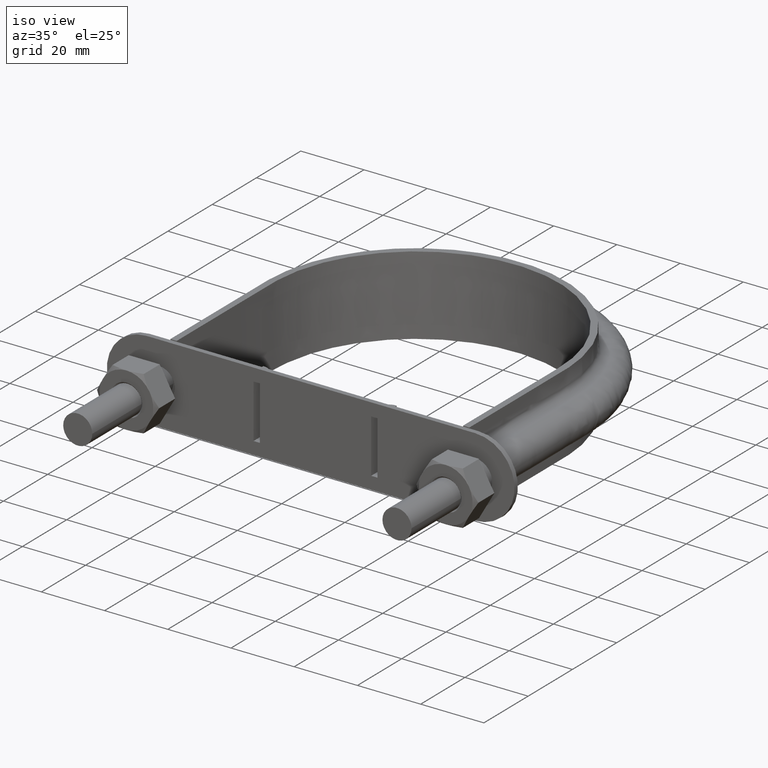
[diagram: clean part render]
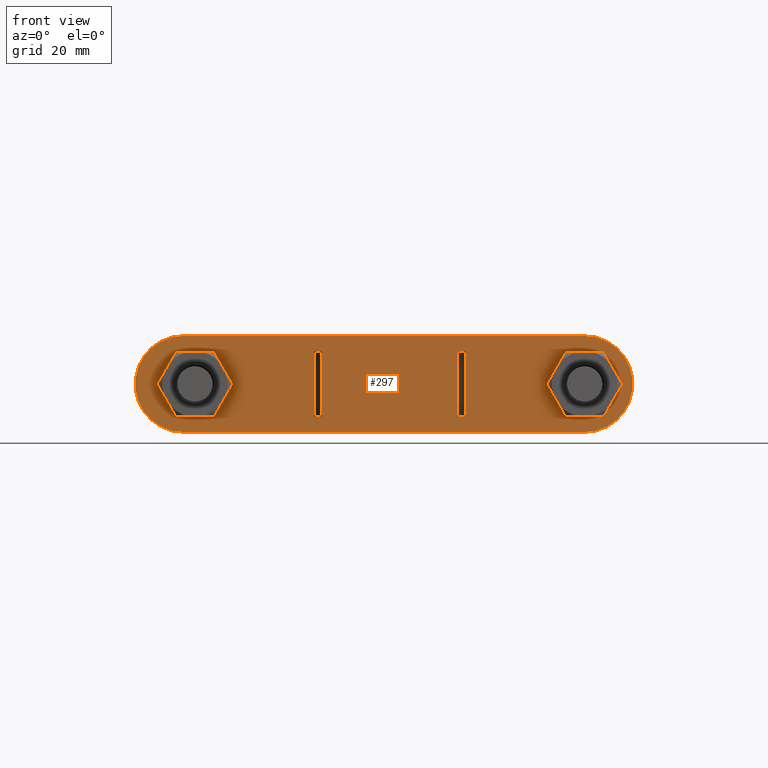
[diagram: tour spotlight — one face highlighted and labeled with its STEP entity id]
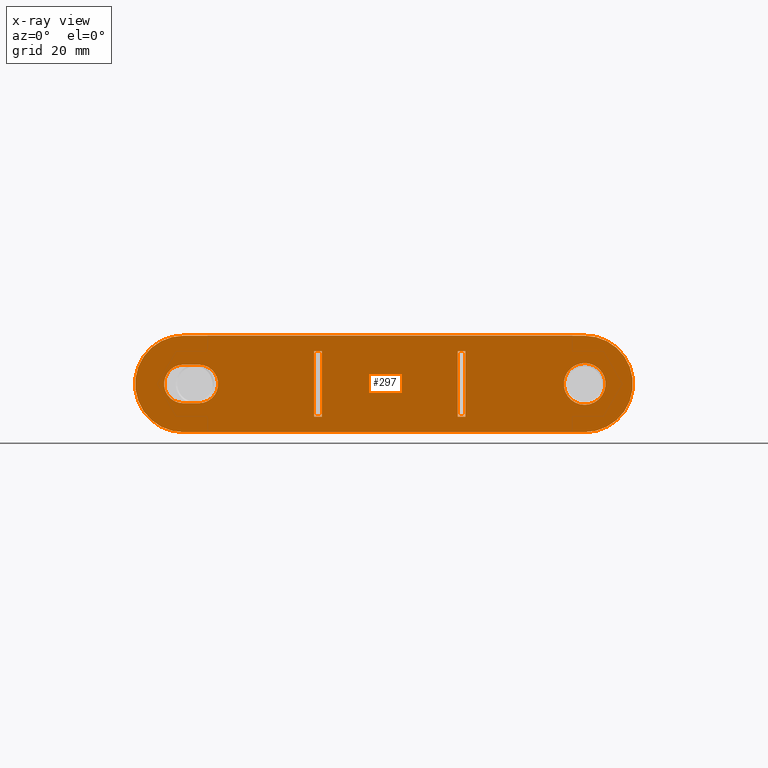
[diagram: x-ray of the same camera — body ghosted, this tour face saturated]
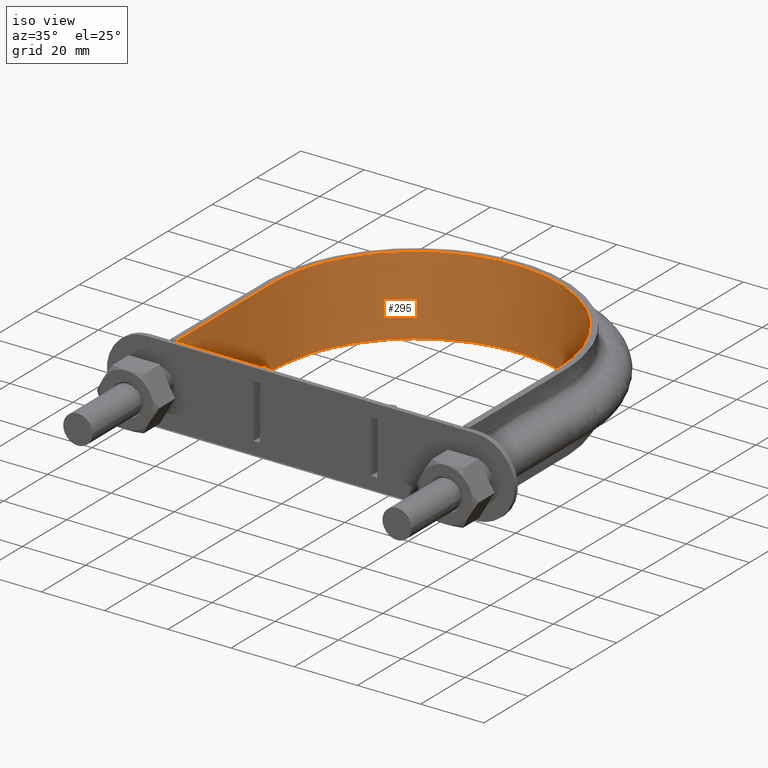
[diagram: tour spotlight — one face highlighted and labeled with its STEP entity id]
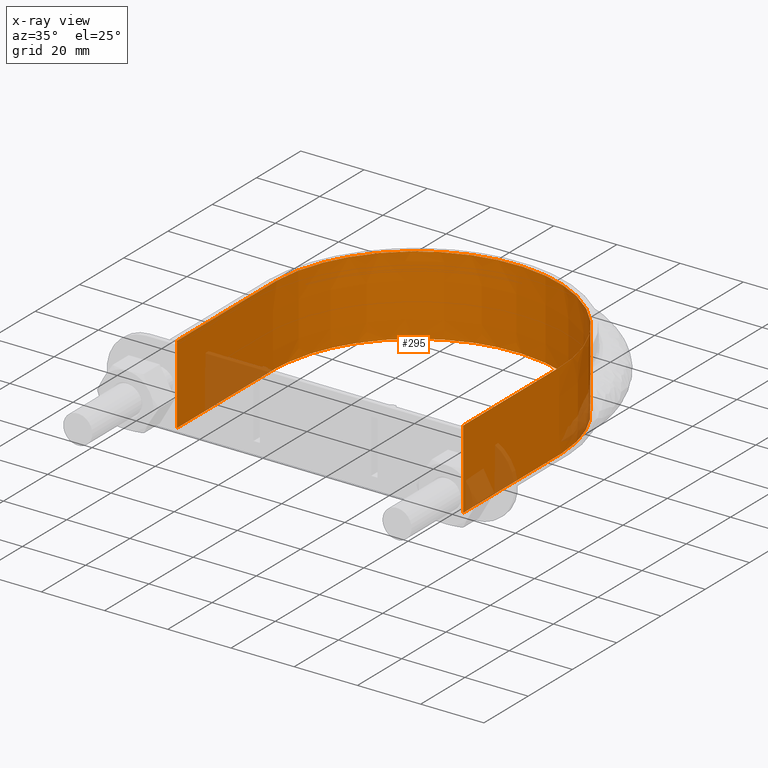
[diagram: x-ray of the same camera — body ghosted, this tour face saturated]
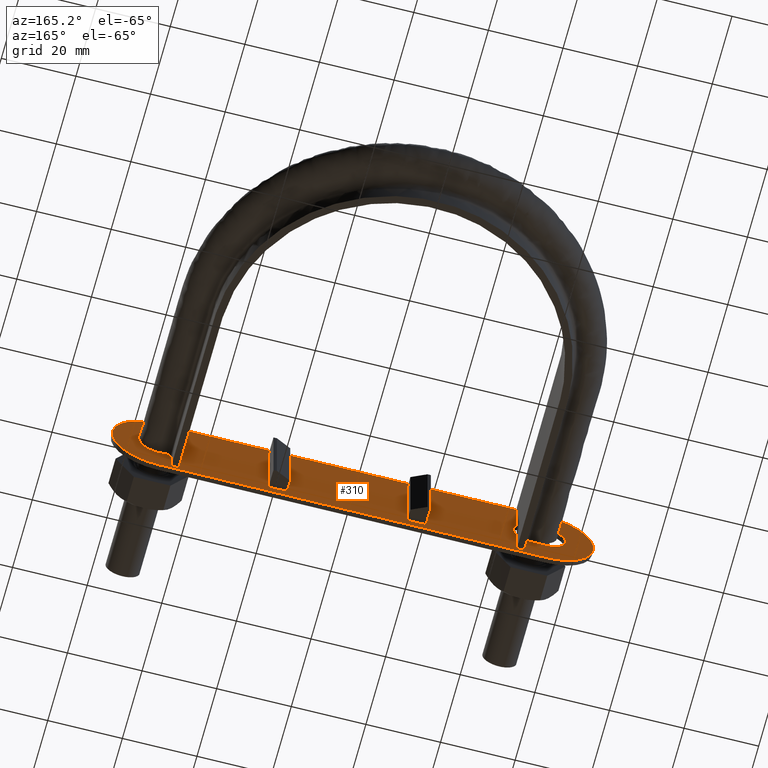
[diagram: tour spotlight — one face highlighted and labeled with its STEP entity id]
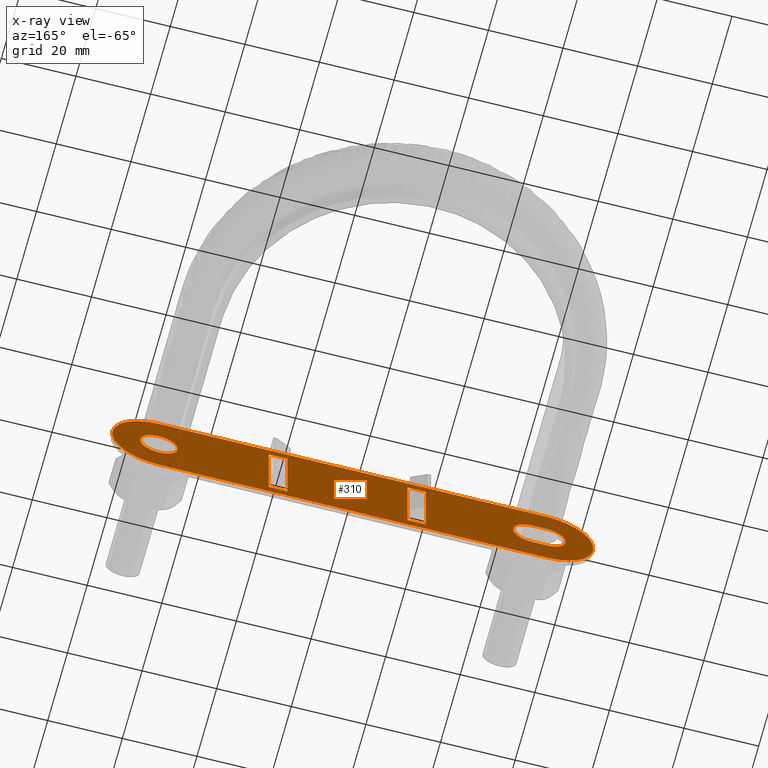
[diagram: x-ray of the same camera — body ghosted, this tour face saturated]
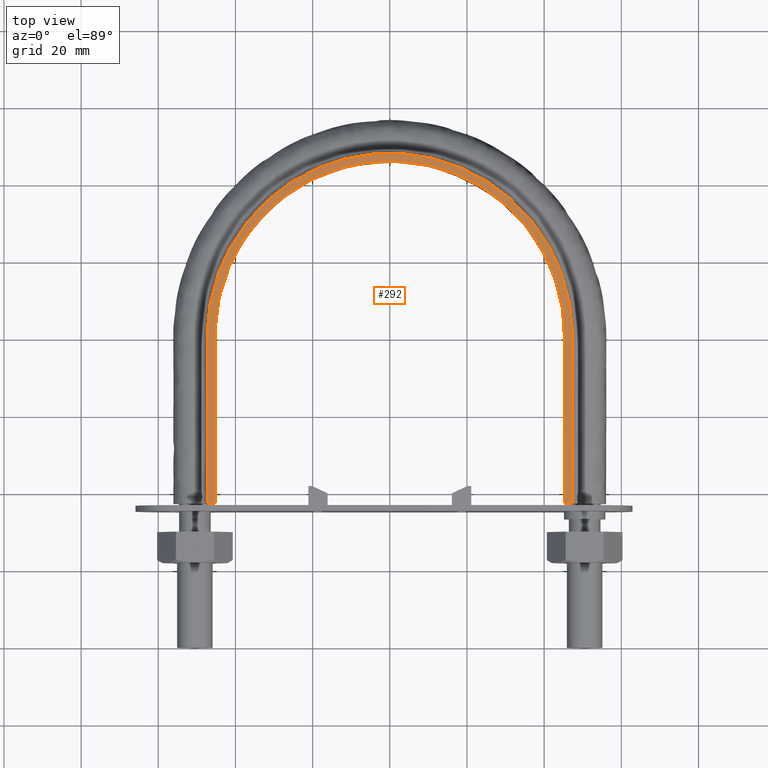
[diagram: tour spotlight — one face highlighted and labeled with its STEP entity id]
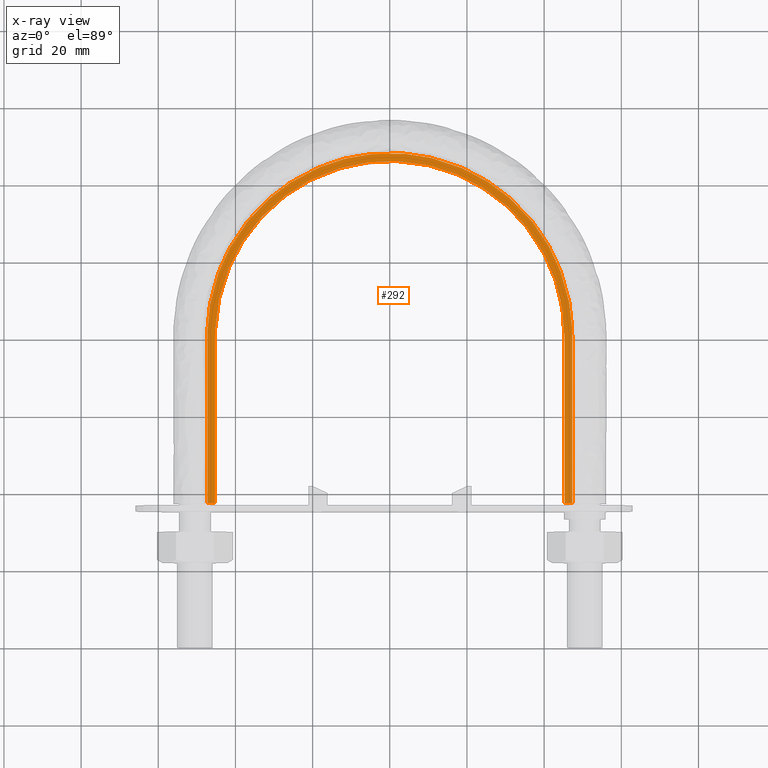
[diagram: x-ray of the same camera — body ghosted, this tour face saturated]
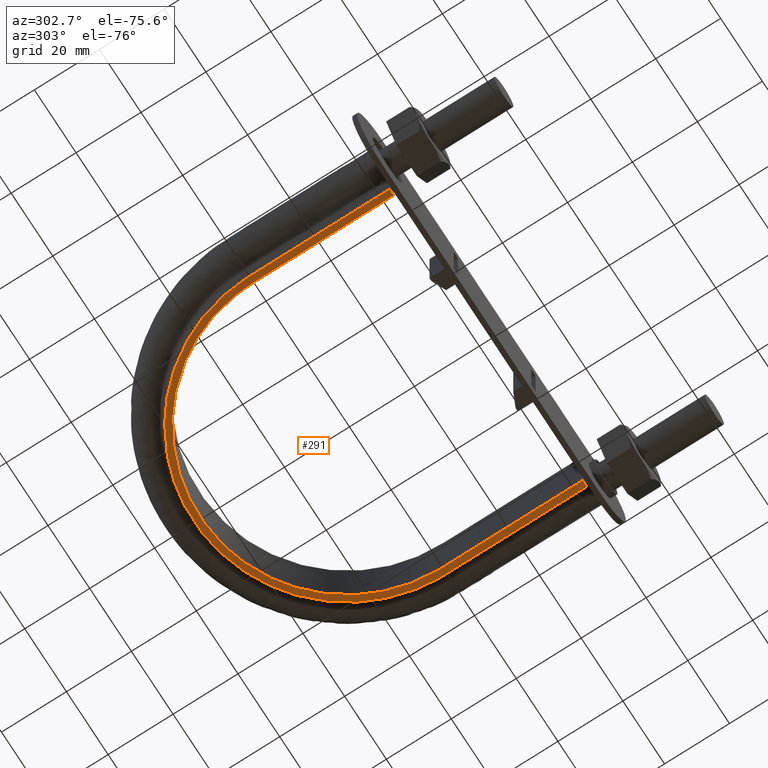
[diagram: tour spotlight — one face highlighted and labeled with its STEP entity id]
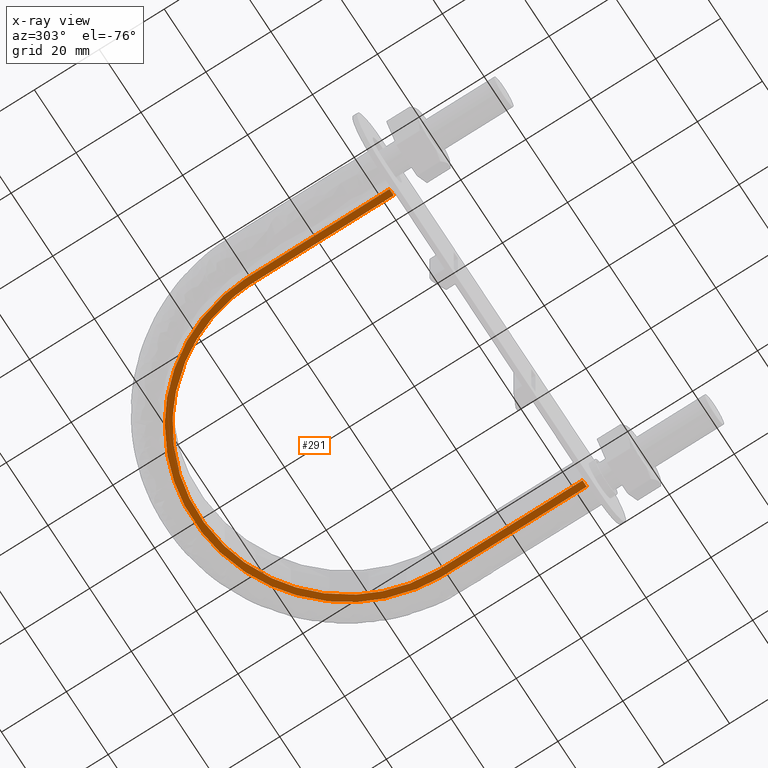
[diagram: x-ray of the same camera — body ghosted, this tour face saturated]
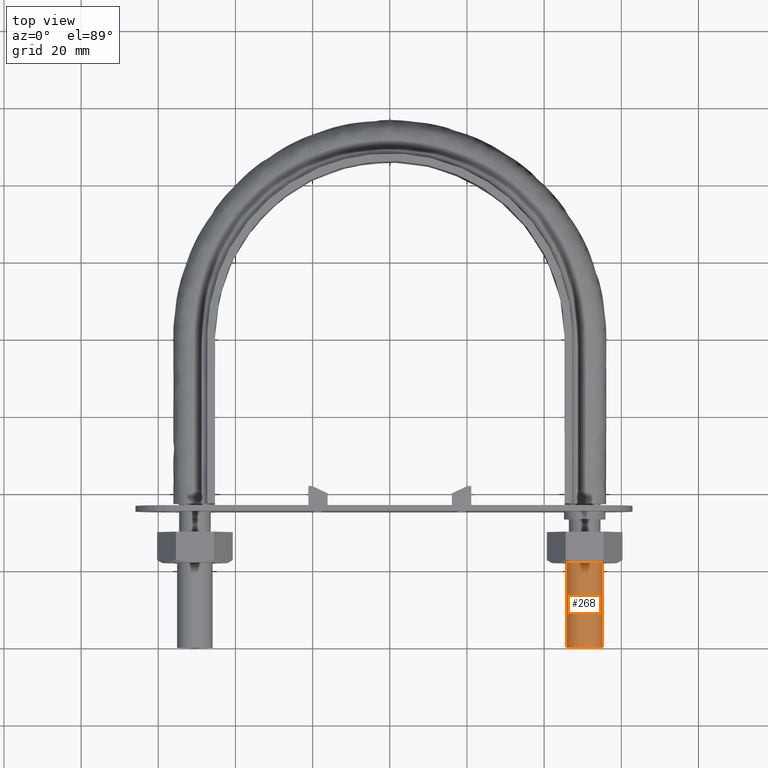
[diagram: tour spotlight — one face highlighted and labeled with its STEP entity id]
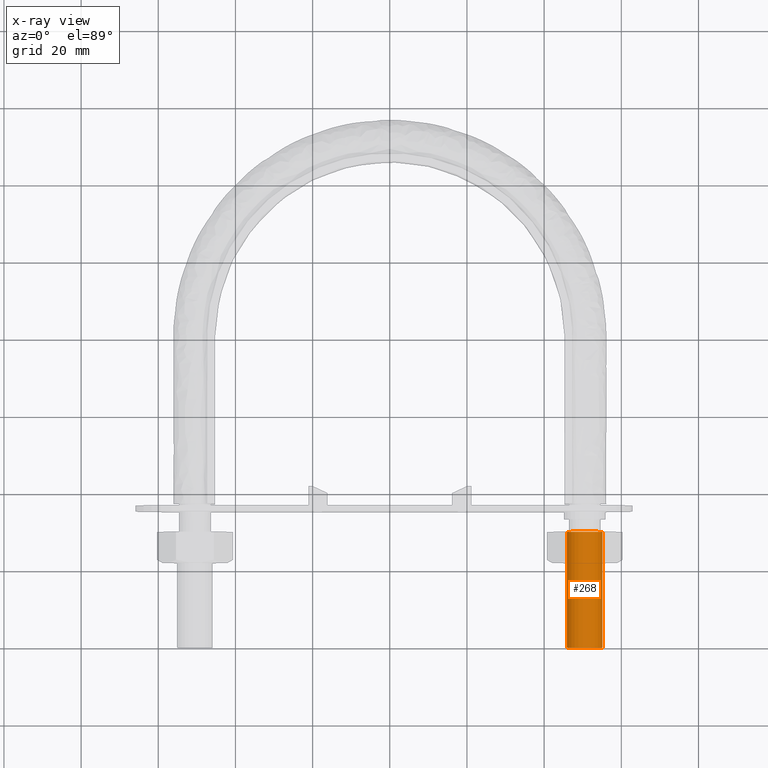
[diagram: x-ray of the same camera — body ghosted, this tour face saturated]
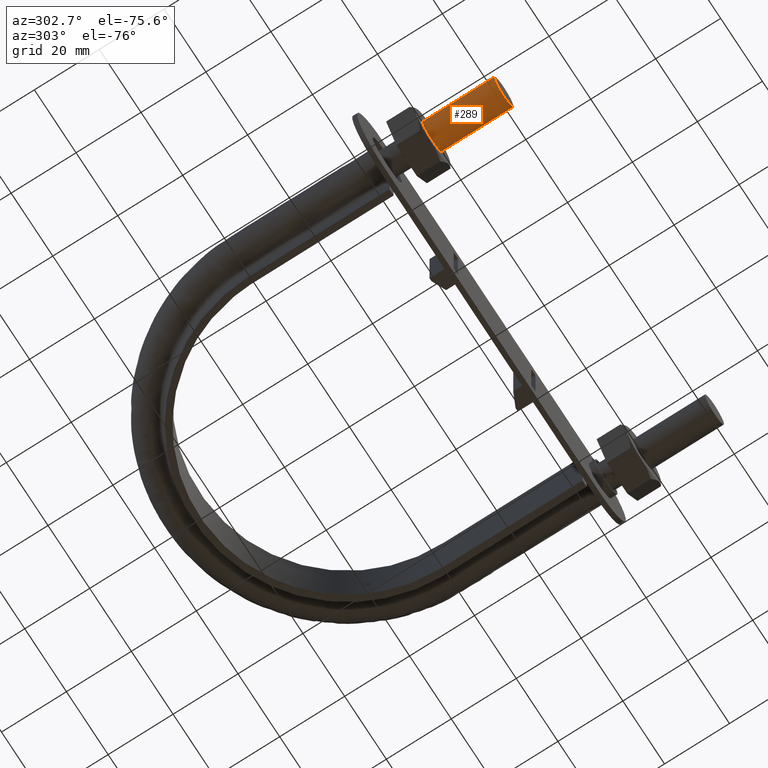
[diagram: tour spotlight — one face highlighted and labeled with its STEP entity id]
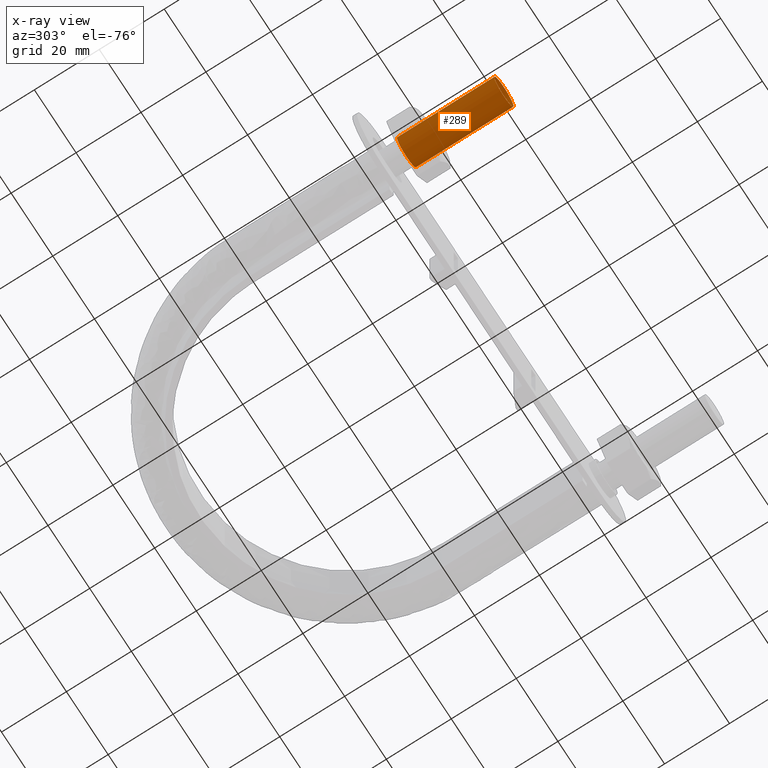
[diagram: x-ray of the same camera — body ghosted, this tour face saturated]
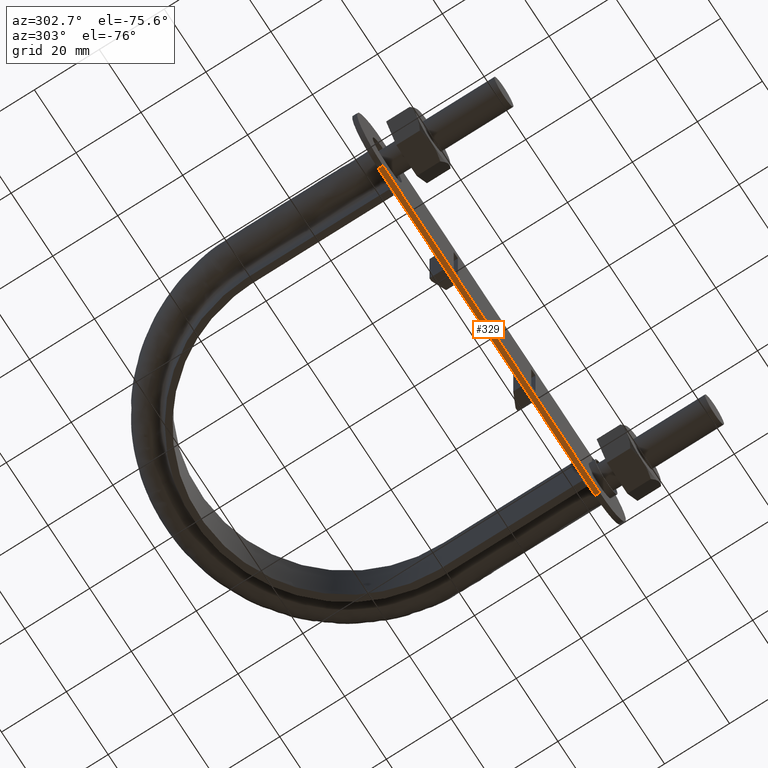
[diagram: tour spotlight — one face highlighted and labeled with its STEP entity id]
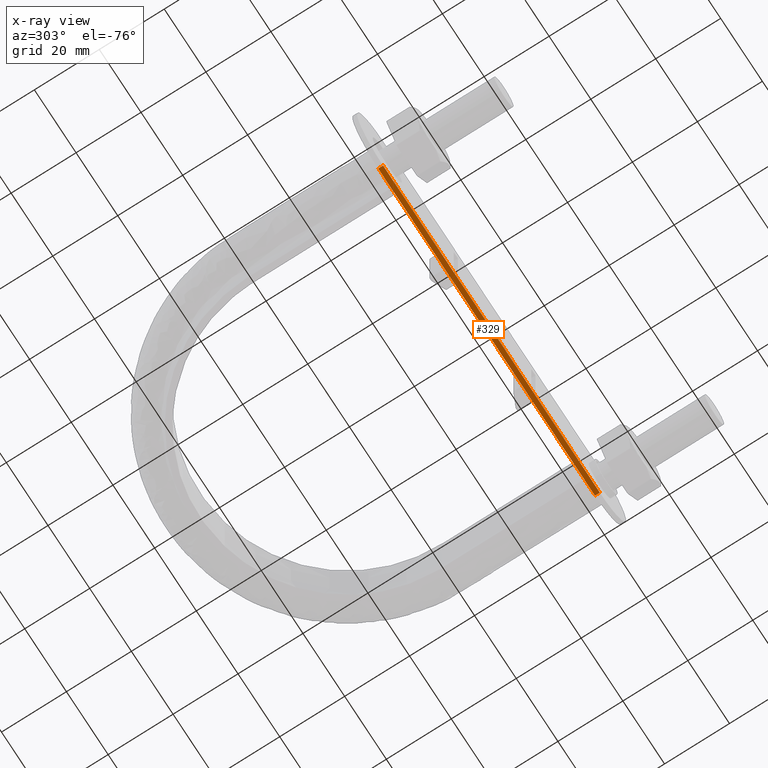
[diagram: x-ray of the same camera — body ghosted, this tour face saturated]
A machine part: a face-by-face anatomy tour. The part has 111 B-rep faces; the first image is the clean iso view, then the 8 largest visible faces are spotlighted one at a time (largest first), each with its STEP entity span.

Face 1 — front view, entity #297. An x-ray twin of the same camera follows (body ghosted, this face saturated) — the face is partly hidden behind the body. In plain terms, the highlighted planar face has unit normal (0, 1, -0).
Definition (entity closure, byte-faithful):
#297 = ADVANCED_FACE( '', ( #449, #450, #451, #452, #453 ), #454, .F. );
#449 = FACE_OUTER_BOUND( '', #1516, .T. );
#450 = FACE_BOUND( '', #1517, .T. );
#451 = FACE_BOUND( '', #1518, .T. );
#452 = FACE_BOUND( '', #1519, .T. );
#453 = FACE_BOUND( '', #1520, .T. );
#454 = PLANE( '', #1521 );
#1516 = EDGE_LOOP( '', ( #1890, #1891, #1892, #1893 ) );
#1517 = EDGE_LOOP( '', ( #1894, #1895, #1896, #1897 ) );
#1518 = EDGE_LOOP( '', ( #1898 ) );
#1519 = EDGE_LOOP( '', ( #1899, #1900, #1901, #1902 ) );
#1520 = EDGE_LOOP( '', ( #1903, #1904, #1905, #1906 ) );
#1521 = AXIS2_PLACEMENT_3D( '', #1907, #1908, #1909 );
#1890 = ORIENTED_EDGE( '', *, *, #2553, .F. );
#1891 = ORIENTED_EDGE( '', *, *, #2554, .F. );
#1892 = ORIENTED_EDGE( '', *, *, #2555, .F. );
#1893 = ORIENTED_EDGE( '', *, *, #2556, .F. );
#1894 = ORIENTED_EDGE( '', *, *, #2557, .F. );
#1895 = ORIENTED_EDGE( '', *, *, #2558, .T. );
#1896 = ORIENTED_EDGE( '', *, *, #2559, .T. );
#1897 = ORIENTED_EDGE( '', *, *, #2560, .F. );
#1898 = ORIENTED_EDGE( '', *, *, #2561, .T. );
#1899 = ORIENTED_EDGE( '', *, *, #2562, .F. );
#1900 = ORIENTED_EDGE( '', *, *, #2563, .F. );
#1901 = ORIENTED_EDGE( '', *, *, #2564, .F. );
#1902 = ORIENTED_EDGE( '', *, *, #2565, .F. );
#1903 = ORIENTED_EDGE( '', *, *, #2566, .T. );
#1904 = ORIENTED_EDGE( '', *, *, #2567, .T. );
#1905 = ORIENTED_EDGE( '', *, *, #2568, .F. );
#1906 = ORIENTED_EDGE( '', *, *, #2569, .F. );
#1907 = CARTESIAN_POINT( '', ( -53.5000000000000, 35.2999999999975, 3.14292695115396E-009 ) );
#1908 = DIRECTION( '', ( 2.83848234144727E-027, 1.00000000000000, -6.03659968900116E-014 ) );
#1909 = DIRECTION( '', ( 1.00000000000000, -3.58732406867153E-043, 4.70212120677648E-014 ) );
#2553 = EDGE_CURVE( '', #2817, #2818, #2819, .T. );
#2554 = EDGE_CURVE( '', #2820, #2817, #2821, .F. );
#2555 = EDGE_CURVE( '', #2822, #2820, #2823, .T. );
#2556 = EDGE_CURVE( '', #2818, #2822, #2824, .F. );
#2557 = EDGE_CURVE( '', #2825, #2826, #2827, .F. );
#2558 = EDGE_CURVE( '', #2825, #2828, #2829, .T. );
#2559 = EDGE_CURVE( '', #2828, #2830, #2831, .T. );
#2560 = EDGE_CURVE( '', #2826, #2830, #2832, .T. );
#2561 = EDGE_CURVE( '', #2833, #2833, #2834, .T. );
#2562 = EDGE_CURVE( '', #2835, #2836, #2837, .F. );
#2563 = EDGE_CURVE( '', #2838, #2835, #2839, .T. );
#2564 = EDGE_CURVE( '', #2840, #2838, #2841, .F. );
#2565 = EDGE_CURVE( '', #2836, #2840, #2842, .T. );
#2566 = EDGE_CURVE( '', #2843, #2844, #2845, .F. );
#2567 = EDGE_CURVE( '', #2844, #2846, #2847, .T. );
#2568 = EDGE_CURVE( '', #2848, #2846, #2849, .T. );
#2569 = EDGE_CURVE( '', #2843, #2848, #2850, .T. );
#2817 = VERTEX_POINT( '', #3459 );
#2818 = VERTEX_POINT( '', #3460 );
#2819 = CIRCLE( '', #3461, 12.5000000000000 );
#2820 = VERTEX_POINT( '', #3462 );
#2821 = LINE( '', #3463, #3464 );
#2822 = VERTEX_POINT( '', #3465 );
#2823 = CIRCLE( '', #3466, 12.5000000000000 );
#2824 = LINE( '', #3467, #3468 );
#2825 = VERTEX_POINT( '', #3469 );
#2826 = VERTEX_POINT( '', #3470 );
#2827 = LINE( '', #3471, #3472 );
#2828 = VERTEX_POINT( '', #3473 );
#2829 = LINE( '', #3474, #3475 );
#2830 = VERTEX_POINT( '', #3476 );
#2831 = LINE( '', #3477, #3478 );
#2832 = LINE( '', #3479, #3480 );
#2833 = VERTEX_POINT( '', #3481 );
#2834 = CIRCLE( '', #3482, 5.40000000000000 );
#2835 = VERTEX_POINT( '', #3483 );
#2836 = VERTEX_POINT( '', #3484 );
#2837 = CIRCLE( '', #3485, 5.00000000000000 );
#2838 = VERTEX_POINT( '', #3486 );
#2839 = LINE( '', #3487, #3488 );
#2840 = VERTEX_POINT( '', #3489 );
#2841 = CIRCLE( '', #3490, 5.00000000000000 );
#2842 = LINE( '', #3491, #3492 );
#2843 = VERTEX_POINT( '', #3493 );
#2844 = VERTEX_POINT( '', #3494 );
#2845 = LINE( '', #3495, #3496 );
#2846 = VERTEX_POINT( '', #3497 );
#2847 = LINE( '', #3498, #3499 );
#2848 = VERTEX_POINT( '', #3500 );
#2849 = LINE( '', #3501, #3502 );
#2850 = LINE( '', #3503, #3504 );
#3459 = CARTESIAN_POINT( '', ( -53.5000000007343, 35.2999999999968, -12.4999999968571 ) );
#3460 = CARTESIAN_POINT( '', ( -53.4999999996328, 35.2999999999983, 12.5000000031429 ) );
#3461 = AXIS2_PLACEMENT_3D( '', #4061, #4062, #4063 );
#3462 = CARTESIAN_POINT( '', ( 50.4999999992658, 35.2999999999968, -12.5000000029666 ) );
#3463 = CARTESIAN_POINT( '', ( 50.4999999992658, 35.2999999999968, -12.5000000029666 ) );
#3464 = VECTOR( '', #4064, 1000.00000000000 );
#3465 = CARTESIAN_POINT( '', ( 50.5000000003673, 35.2999999999983, 12.5000000000882 ) );
#3466 = AXIS2_PLACEMENT_3D( '', #4065, #4066, #4067 );
#3467 = CARTESIAN_POINT( '', ( -53.4999999992656, 35.2999999999983, 12.5000000031429 ) );
#3468 = VECTOR( '', #4068, 1000.00000000000 );
#3469 = CARTESIAN_POINT( '', ( -19.6000000004992, 35.2999999999970, -8.49999999884854 ) );
#3470 = CARTESIAN_POINT( '', ( -17.6000000004991, 35.2999999999970, -8.49999999884854 ) );
#3471 = CARTESIAN_POINT( '', ( -19.6000000004994, 35.2999999999970, -8.49999999884854 ) );
#3472 = VECTOR( '', #4069, 1000.00000000000 );
#3473 = CARTESIAN_POINT( '', ( -19.5999999995005, 35.2999999999980, 8.50000000115146 ) );
#3474 = CARTESIAN_POINT( '', ( -19.5999999999999, 35.2999999999975, 1.15147260452597E-009 ) );
#3475 = VECTOR( '', #4070, 1000.00000000000 );
#3476 = CARTESIAN_POINT( '', ( -17.5999999995004, 35.2999999999980, 8.50000000115146 ) );
#3477 = CARTESIAN_POINT( '', ( -53.5000000000000, 35.2999999999980, 8.50000000115146 ) );
#3478 = VECTOR( '', #4071, 1000.00000000000 );
#3479 = CARTESIAN_POINT( '', ( -17.6000000004991, 35.2999999999970, -8.49999999896603 ) );
#3480 = VECTOR( '', #4072, 1000.00000000000 );
#3481 = CARTESIAN_POINT( '', ( 50.5000000000001, 35.2999999999978, 5.39999999703343 ) );
#3482 = AXIS2_PLACEMENT_3D( '', #4073, #4074, #4075 );
#3483 = CARTESIAN_POINT( '', ( -53.4999999998531, 35.2999999999978, 5.00000000302542 ) );
#3484 = CARTESIAN_POINT( '', ( -53.5000000002937, 35.2999999999972, -4.99999999685708 ) );
#3485 = AXIS2_PLACEMENT_3D( '', #4076, #4077, #4078 );
#3486 = CARTESIAN_POINT( '', ( -49.4999999998531, 35.2999999999978, 5.00000000290793 ) );
#3487 = CARTESIAN_POINT( '', ( -49.4999999997063, 35.2999999999978, 5.00000000290793 ) );
#3488 = VECTOR( '', #4079, 1000.00000000000 );
#3489 = CARTESIAN_POINT( '', ( -49.5000000002937, 35.2999999999972, -4.99999999709206 ) );
#3490 = AXIS2_PLACEMENT_3D( '', #4080, #4081, #4082 );
#3491 = CARTESIAN_POINT( '', ( -53.5000000002938, 35.2999999999972, -4.99999999685708 ) );
#3492 = VECTOR( '', #4083, 1000.00000000000 );
#3493 = CARTESIAN_POINT( '', ( 19.5999999995012, 35.2999999999970, -8.50000000115160 ) );
#3494 = CARTESIAN_POINT( '', ( 17.5999999995013, 35.2999999999970, -8.50000000115160 ) );
#3495 = CARTESIAN_POINT( '', ( -53.5000000000000, 35.2999999999970, -8.50000000115160 ) );
#3496 = VECTOR( '', #4084, 1000.00000000000 );
#3497 = CARTESIAN_POINT( '', ( 17.6000000005000, 35.2999999999980, 8.49999999884891 ) );
#3498 = CARTESIAN_POINT( '', ( 17.6000000000006, 35.2999999999975, -1.03385412107255E-009 ) );
#3499 = VECTOR( '', #4085, 1000.00000000000 );
#3500 = CARTESIAN_POINT( '', ( 19.6000000004999, 35.2999999999980, 8.49999999884891 ) );
#3501 = CARTESIAN_POINT( '', ( 19.6000000004999, 35.2999999999980, 8.49999999884891 ) );
#3502 = VECTOR( '', #4086, 1000.00000000000 );
#3503 = CARTESIAN_POINT( '', ( 19.5999999995012, 35.2999999999970, -8.50000000115161 ) );
#3504 = VECTOR( '', #4087, 1000.00000000000 );
#4061 = CARTESIAN_POINT( '', ( -53.5000000000000, 35.2999999999975, 3.14292695115396E-009 ) );
#4062 = DIRECTION( '', ( 2.83848234144727E-027, 1.00000000000000, -6.03659968900116E-014 ) );
#4063 = DIRECTION( '', ( 0.000000000000000, 6.03659968900116E-014, 1.00000000000000 ) );
#4064 = DIRECTION( '', ( 1.00000000000000, -3.54904285531665E-024, -5.87450643685463E-011 ) );
#4065 = CARTESIAN_POINT( '', ( 50.5000000000001, 35.2999999999975, -2.96655627372791E-009 ) );
#4066 = DIRECTION( '', ( 2.83848234144727E-027, 1.00000000000000, -6.03659968900116E-014 ) );
#4067 = DIRECTION( '', ( 0.000000000000000, 6.03659968900116E-014, 1.00000000000000 ) );
#4068 = DIRECTION( '', ( -1.00000000000000, 2.83848234166134E-027, 3.54620457586579E-024 ) );
#4069 = DIRECTION( '', ( -1.00000000000000, 2.83848234166212E-027, 3.55925227485225E-024 ) );
#4070 = DIRECTION( '', ( 5.87449659772266E-011, 6.03659968900116E-014, 1.00000000000000 ) );
#4071 = DIRECTION( '', ( 1.00000000000000, -2.83848234166212E-027, -3.55925227485225E-024 ) );
#4072 = DIRECTION( '', ( 5.87449659772266E-011, 6.03659968900116E-014, 1.00000000000000 ) );
#4073 = CARTESIAN_POINT( '', ( 50.5000000000001, 35.2999999999975, -2.96656668206876E-009 ) );
#4074 = DIRECTION( '', ( 2.83848234144727E-027, 1.00000000000000, -6.03659968900116E-014 ) );
#4075 = DIRECTION( '', ( 0.000000000000000, 6.03659968900116E-014, 1.00000000000000 ) );
#4076 = CARTESIAN_POINT( '', ( -53.5000000000000, 35.2999999999975, 3.14291480808963E-009 ) );
#4077 = DIRECTION( '', ( 2.83848234144727E-027, 1.00000000000000, -6.03659968900116E-014 ) );
#4078 = DIRECTION( '', ( 0.000000000000000, 6.03659968900116E-014, 1.00000000000000 ) );
#4079 = DIRECTION( '', ( -1.00000000000000, 2.83848234166134E-027, 3.54620457586579E-024 ) );
#4080 = CARTESIAN_POINT( '', ( -49.4999999999999, 35.2999999999975, 2.90793455061544E-009 ) );
#4081 = DIRECTION( '', ( 2.83848234144727E-027, 1.00000000000000, -6.03659968900116E-014 ) );
#4082 = DIRECTION( '', ( 0.000000000000000, 6.03659968900116E-014, 1.00000000000000 ) );
#4083 = DIRECTION( '', ( 1.00000000000000, -3.54904285531665E-024, -5.87450643685463E-011 ) );
#4084 = DIRECTION( '', ( 1.00000000000000, -2.83848234166212E-027, -3.55925327694537E-024 ) );
#4085 = DIRECTION( '', ( 5.87451627598660E-011, 6.03659968900116E-014, 1.00000000000000 ) );
#4086 = DIRECTION( '', ( -1.00000000000000, 2.83848234166212E-027, 3.55925327694537E-024 ) );
#4087 = DIRECTION( '', ( 5.87451627598660E-011, 6.03659968900116E-014, 1.00000000000000 ) );

Face 2 — iso view, entity #295. An x-ray twin of the same camera follows (body ghosted, this face saturated) — the face is partly hidden behind the body. In plain terms, the highlighted face is a SurfaceOfExtrusion surface.
Definition (entity closure, byte-faithful):
#295 = ADVANCED_FACE( '', ( #444 ), #445, .T. );
#444 = FACE_OUTER_BOUND( '', #1351, .T. );
#445 = SURFACE_OF_LINEAR_EXTRUSION( '', #1352, #1353 );
#1351 = EDGE_LOOP( '', ( #1867, #1868, #1869, #1870 ) );
#1352 = B_SPLINE_CURVE_WITH_KNOTS( '', 3, ( #1871, #1872, #1873, #1874, #1875, #1876, #1877, #1878, #1879, #1880, #1881, #1882, #1883, #1884, #1885, #1886 ), .UNSPECIFIED., .F., .F., ( 4, 3, 1, 1, 1, 1, 1, 1, 3, 4 ), ( -8.93133047210300, -8.00000000000000, -7.00000000000000, -6.00000000000000, -5.00000000000000, -4.00000000000000, -3.00000000000000, -2.00000000000000, -1.00000000000000, -0.0686695278969956 ), .UNSPECIFIED. );
#1353 = VECTOR( '', #1887, 1000.00000000000 );
#1867 = ORIENTED_EDGE( '', *, *, #2539, .T. );
#1868 = ORIENTED_EDGE( '', *, *, #2544, .T. );
#1869 = ORIENTED_EDGE( '', *, *, #2550, .F. );
#1870 = ORIENTED_EDGE( '', *, *, #2547, .T. );
#1871 = CARTESIAN_POINT( '', ( 45.3000000000000, 37.3000000000000, 12.5000100000910 ) );
#1872 = CARTESIAN_POINT( '', ( 45.3000000000000, 51.7666666666667, 12.5000100000910 ) );
#1873 = CARTESIAN_POINT( '', ( 45.3000000000000, 66.2333333333333, 12.5000100000910 ) );
#1874 = CARTESIAN_POINT( '', ( 45.3000000000000, 80.7000000000000, 12.5000100000910 ) );
#1875 = CARTESIAN_POINT( '', ( 45.3000000000000, 87.4617942068644, 12.5000100000910 ) );
#1876 = CARTESIAN_POINT( '', ( 42.2071641315033, 101.032157601825, 12.5000100000910 ) );
#1877 = CARTESIAN_POINT( '', ( 29.2082638356160, 117.324357375469, 12.5000100000910 ) );
#1878 = CARTESIAN_POINT( '', ( 10.4243086712368, 126.372209831110, 12.5000100000910 ) );
#1879 = CARTESIAN_POINT( '', ( -10.4243086712368, 126.372209831110, 12.5000100000910 ) );
#1880 = CARTESIAN_POINT( '', ( -29.2082638356159, 117.324357375469, 12.5000100000910 ) );
#1881 = CARTESIAN_POINT( '', ( -42.2071641315033, 101.032157601825, 12.5000100000910 ) );
#1882 = CARTESIAN_POINT( '', ( -45.3000000000000, 87.4617942068644, 12.5000100000910 ) );
#1883 = CARTESIAN_POINT( '', ( -45.3000000000000, 80.7000000000000, 12.5000100000910 ) );
#1884 = CARTESIAN_POINT( '', ( -45.3000000000000, 66.2333333333333, 12.5000100000910 ) );
#1885 = CARTESIAN_POINT( '', ( -45.3000000000000, 51.7666666666667, 12.5000100000910 ) );
#1886 = CARTESIAN_POINT( '', ( -45.3000000000000, 37.3000000000000, 12.5000100000910 ) );
#1887 = DIRECTION( '', ( 0.000000000000000, 0.000000000000000, -1.00000000000000 ) );
#2539 = EDGE_CURVE( '', #2793, #2794, #2795, .T. );
#2544 = EDGE_CURVE( '', #2794, #2803, #2804, .F. );
#2547 = EDGE_CURVE( '', #2808, #2793, #2809, .T. );
#2550 = EDGE_CURVE( '', #2808, #2803, #2813, .T. );
#2793 = VERTEX_POINT( '', #3223 );
#2794 = VERTEX_POINT( '', #3224 );
#2795 = LINE( '', #3225, #3226 );
#2803 = VERTEX_POINT( '', #3275 );
#2804 = B_SPLINE_CURVE_WITH_KNOTS( '', 3, ( #3276, #3277, #3278, #3279, #3280, #3281, #3282, #3283, #3284, #3285, #3286, #3287, #3288, #3289, #3290, #3291 ), .UNSPECIFIED., .F., .F., ( 4, 3, 1, 1, 1, 1, 1, 1, 3, 4 ), ( -8.93133047210300, -8.00000000000000, -7.00000000000000, -6.00000000000000, -5.00000000000000, -4.00000000000000, -3.00000000000000, -2.00000000000000, -1.00000000000000, -0.0686695278969956 ), .UNSPECIFIED. );
#2808 = VERTEX_POINT( '', #3311 );
#2809 = B_SPLINE_CURVE_WITH_KNOTS( '', 3, ( #3312, #3313, #3314, #3315, #3316, #3317, #3318, #3319, #3320, #3321, #3322, #3323, #3324, #3325, #3326, #3327, #3328, #3329, #3330, #3331, #3332, #3333, #3334, #3335, #3336, #3337, #3338, #3339, #3340, #3341, #3342, #3343, #3344, #3345, #3346, #3347, #3348, #3349, #3350, #3351, #3352, #3353, #3354, #3355, #3356, #3357, #3358, #3359, #3360, #3361, #3362, #3363, #3364, #3365, #3366, #3367, #3368, #3369, #3370, #3371, #3372, #3373, #3374, #3375, #3376, #3377, #3378, #3379, #3380, #3381, #3382, #3383, #3384, #3385, #3386, #3387, #3388, #3389, #3390, #3391, #3392, #3393, #3394, #3395 ), .UNSPECIFIED., .F., .F., ( 4, 1, 2, 2, 2, 2, 2, 2, 2, 2, 2, 2, 2, 2, 2, 2, 2, 2, 2, 2, 2, 2, 2, 2, 2, 2, 2, 2, 2, 2, 2, 2, 2, 2, 2, 2, 2, 2, 2, 2, 2, 1, 4 ), ( 0.000000000000000, 0.0287543779946544, 0.0431315669919816, 0.0440301413043146, 0.0449287156166476, 0.0467258642413135, 0.0503201614906453, 0.0575087559893089, 0.0611030532386408, 0.0629002018633067, 0.0646973504879726, 0.0718859449866363, 0.0754802422359682, 0.0790745394853000, 0.0862631339839637, 0.0898574312332955, 0.0916545798579614, 0.0934517284826273, 0.100640322981291, 0.107828917479955, 0.111423214729286, 0.115017511978618, 0.122206106477282, 0.124003255101948, 0.125800403726614, 0.129394700975946, 0.136583295474609, 0.138380444099275, 0.140177592723941, 0.143771889973273, 0.150960484471937, 0.154554781721269, 0.158149078970600, 0.165337673469264, 0.168931970718596, 0.170729119343262, 0.172526267967928, 0.179714862466592, 0.183309159715923, 0.185106308340589, 0.186903456965255, 0.201280645962582, 0.230035023957236 ), .UNSPECIFIED. );
#2813 = LINE( '', #3415, #3416 );
#3223 = CARTESIAN_POINT( '', ( -45.3000000000000, 37.3000000000000, 12.5000000000000 ) );
#3224 = CARTESIAN_POINT( '', ( -45.3000000000000, 37.3000000000000, -12.5000000000000 ) );
#3225 = CARTESIAN_POINT( '', ( -45.3000000000000, 37.3000000000000, 12.5000100000910 ) );
#3226 = VECTOR( '', #4055, 1000.00000000000 );
#3275 = CARTESIAN_POINT( '', ( 45.3000000000000, 37.3000000000000, -12.5000000000000 ) );
#3276 = CARTESIAN_POINT( '', ( 45.3000000000000, 37.3000000000000, -12.5000000000000 ) );
#3277 = CARTESIAN_POINT( '', ( 45.3000000000000, 51.7666666666667, -12.5000000000000 ) );
#3278 = CARTESIAN_POINT( '', ( 45.3000000000000, 66.2333333333333, -12.5000000000000 ) );
#3279 = CARTESIAN_POINT( '', ( 45.3000000000000, 80.7000000000000, -12.5000000000000 ) );
#3280 = CARTESIAN_POINT( '', ( 45.3000000000000, 87.4617942068644, -12.5000000000000 ) );
#3281 = CARTESIAN_POINT( '', ( 42.2071641315033, 101.032157601825, -12.5000000000000 ) );
#3282 = CARTESIAN_POINT( '', ( 29.2082638356160, 117.324357375469, -12.5000000000000 ) );
#3283 = CARTESIAN_POINT( '', ( 10.4243086712368, 126.372209831110, -12.5000000000000 ) );
#3284 = CARTESIAN_POINT( '', ( -10.4243086712368, 126.372209831110, -12.5000000000000 ) );
#3285 = CARTESIAN_POINT( '', ( -29.2082638356159, 117.324357375469, -12.5000000000000 ) );
#3286 = CARTESIAN_POINT( '', ( -42.2071641315033, 101.032157601825, -12.5000000000000 ) );
#3287 = CARTESIAN_POINT( '', ( -45.3000000000000, 87.4617942068644, -12.5000000000000 ) );
#3288 = CARTESIAN_POINT( '', ( -45.3000000000000, 80.7000000000000, -12.5000000000000 ) );
#3289 = CARTESIAN_POINT( '', ( -45.3000000000000, 66.2333333333333, -12.5000000000000 ) );
#3290 = CARTESIAN_POINT( '', ( -45.3000000000000, 51.7666666666667, -12.5000000000000 ) );
#3291 = CARTESIAN_POINT( '', ( -45.3000000000000, 37.3000000000000, -12.5000000000000 ) );
#3311 = CARTESIAN_POINT( '', ( 45.3000000000000, 37.3000000000000, 12.5000000000000 ) );
#3312 = CARTESIAN_POINT( '', ( 45.3000000000000, 37.3000000000000, 12.5000000000000 ) );
#3313 = CARTESIAN_POINT( '', ( 45.3000000000000, 46.8848205646283, 12.5000000000000 ) );
#3314 = CARTESIAN_POINT( '', ( 45.3000000000000, 61.2620514115707, 12.5000000000000 ) );
#3315 = CARTESIAN_POINT( '', ( 45.3000000000000, 75.6392822585131, 12.5000000000000 ) );
#3316 = CARTESIAN_POINT( '', ( 45.3000000000000, 80.7312181834719, 12.5000000000000 ) );
#3317 = CARTESIAN_POINT( '', ( 45.2997760120249, 81.0307432856749, 12.5000000000000 ) );
#3318 = CARTESIAN_POINT( '', ( 45.2912777717044, 81.6297740662809, 12.5000000000000 ) );
#3319 = CARTESIAN_POINT( '', ( 45.2840050595566, 81.9292821612152, 12.5000000000000 ) );
#3320 = CARTESIAN_POINT( '', ( 45.2531480099003, 82.8277846367912, 12.5000000000000 ) );
#3321 = CARTESIAN_POINT( '', ( 45.2204957104834, 83.4272000245196, 12.5000000000000 ) );
#3322 = CARTESIAN_POINT( '', ( 45.0866957945141, 85.2224949492727, 12.5000000000000 ) );
#3323 = CARTESIAN_POINT( '', ( 44.9504291017170, 86.4079063220154, 12.5000000000000 ) );
#3324 = CARTESIAN_POINT( '', ( 44.4061177465218, 89.9311689042301, 12.5000000000000 ) );
#3325 = CARTESIAN_POINT( '', ( 43.8636822485659, 92.2363211946235, 12.5000000000000 ) );
#3326 = CARTESIAN_POINT( '', ( 42.7815683609984, 95.6287299026633, 12.5000000000000 ) );
#3327 = CARTESIAN_POINT( '', ( 42.3758385758423, 96.7485776392014, 12.5000000000000 ) );
#3328 = CARTESIAN_POINT( '', ( 41.6971261299261, 98.4112887411979, 12.5000000000000 ) );
#3329 = CARTESIAN_POINT( '', ( 41.4587485176160, 98.9635224872954, 12.5000000000000 ) );
#3330 = CARTESIAN_POINT( '', ( 40.9623939009448, 100.052686028662, 12.5000000000000 ) );
#3331 = CARTESIAN_POINT( '', ( 40.7040140940422, 100.590633634307, 12.5000000000000 ) );
#3332 = CARTESIAN_POINT( '', ( 39.3618284958927, 103.247672872113, 12.5000000000000 ) );
#3333 = CARTESIAN_POINT( '', ( 38.1287732829048, 105.269715209024, 12.5000000000000 ) );
#3334 = CARTESIAN_POINT( '', ( 36.0483927303405, 108.152702706861, 12.5000000000000 ) );
#3335 = CARTESIAN_POINT( '', ( 35.3162279376427, 109.088530904417, 12.5000000000000 ) );
#3336 = CARTESIAN_POINT( '', ( 33.7729613787723, 110.908858607226, 12.5000000000000 ) );
#3337 = CARTESIAN_POINT( '', ( 32.9584983694079, 111.796352407073, 12.5000000000000 ) );
#3338 = CARTESIAN_POINT( '', ( 30.4343658146004, 114.337344556213, 12.5000000000000 ) );
#3339 = CARTESIAN_POINT( '', ( 28.6360692622386, 115.881493975360, 12.5000000000000 ) );
#3340 = CARTESIAN_POINT( '', ( 25.7668653719942, 117.974964438366, 12.5000000000000 ) );
#3341 = CARTESIAN_POINT( '', ( 24.7819445161320, 118.635801019642, 12.5000000000000 ) );
#3342 = CARTESIAN_POINT( '', ( 23.2616146962020, 119.571356100425, 12.5000000000000 ) );
#3343 = CARTESIAN_POINT( '', ( 22.7476691870376, 119.873910471946, 12.5000000000000 ) );
#3344 = CARTESIAN_POINT( '', ( 21.7052773821732, 120.460213200769, 12.5000000000000 ) );
#3345 = CARTESIAN_POINT( '', ( 21.1756556167052, 120.744537298346, 12.5000000000000 ) );
#3346 = CARTESIAN_POINT( '', ( 18.5103111801554, 122.108501344270, 12.5000000000000 ) );
#3347 = CARTESIAN_POINT( '', ( 16.3185331092019, 123.020394560135, 12.5000000000000 ) );
#3348 = CARTESIAN_POINT( '', ( 11.8189661583872, 124.494646423883, 12.5000000000000 ) );
#3349 = CARTESIAN_POINT( '', ( 9.51076198777607, 125.055753822214, 12.5000000000000 ) );
#3350 = CARTESIAN_POINT( '', ( 5.95662532797849, 125.620734661634, 12.5000000000000 ) );
#3351 = CARTESIAN_POINT( '', ( 4.76788785050944, 125.761147485507, 12.5000000000000 ) );
#3352 = CARTESIAN_POINT( '', ( 2.39647070391239, 125.947851083060, 12.5000000000000 ) );
#3353 = CARTESIAN_POINT( '', ( 1.21153117527847, 125.994499013257, 12.5000000000000 ) );
#3354 = CARTESIAN_POINT( '', ( -2.34101805316265, 125.996625356462, 12.5000000000000 ) );
#3355 = CARTESIAN_POINT( '', ( -4.70637779815014, 125.815464639074, 12.5000000000000 ) );
#3356 = CARTESIAN_POINT( '', ( -7.65915858277239, 125.351020241084, 12.5000000000000 ) );
#3357 = CARTESIAN_POINT( '', ( -8.25083455194675, 125.245862246466, 12.5000000000000 ) );
#3358 = CARTESIAN_POINT( '', ( -9.42653190172406, 125.012409776832, 12.5000000000000 ) );
#3359 = CARTESIAN_POINT( '', ( -10.0101476162837, 124.884250803394, 12.5000000000000 ) );
#3360 = CARTESIAN_POINT( '', ( -11.7484468334343, 124.465883377835, 12.5000000000000 ) );
#3361 = CARTESIAN_POINT( '', ( -12.8906527223970, 124.141974327520, 12.5000000000000 ) );
#3362 = CARTESIAN_POINT( '', ( -16.2689101217009, 123.039631660257, 12.5000000000000 ) );
#3363 = CARTESIAN_POINT( '', ( -18.4569925447983, 122.131639060066, 12.5000000000000 ) );
#3364 = CARTESIAN_POINT( '', ( -21.1113012403400, 120.778432115202, 12.5000000000000 ) );
#3365 = CARTESIAN_POINT( '', ( -21.6380918925235, 120.496795189040, 12.5000000000000 ) );
#3366 = CARTESIAN_POINT( '', ( -22.6833837807201, 119.911132577781, 12.5000000000000 ) );
#3367 = CARTESIAN_POINT( '', ( -23.2017061819433, 119.607128404409, 12.5000000000000 ) );
#3368 = CARTESIAN_POINT( '', ( -24.7303471350013, 118.669564342871, 12.5000000000000 ) );
#3369 = CARTESIAN_POINT( '', ( -25.7191011998733, 118.007938274698, 12.5000000000000 ) );
#3370 = CARTESIAN_POINT( '', ( -28.5955069273409, 115.914712609781, 12.5000000000000 ) );
#3371 = CARTESIAN_POINT( '', ( -30.3928386158800, 114.374206663575, 12.5000000000000 ) );
#3372 = CARTESIAN_POINT( '', ( -32.9098802473356, 111.847665641424, 12.5000000000000 ) );
#3373 = CARTESIAN_POINT( '', ( -33.7201063858692, 110.968144324298, 12.5000000000000 ) );
#3374 = CARTESIAN_POINT( '', ( -35.2745676507394, 109.140548074671, 12.5000000000000 ) );
#3375 = CARTESIAN_POINT( '', ( -36.0108033379543, 108.202093103808, 12.5000000000000 ) );
#3376 = CARTESIAN_POINT( '', ( -38.0999731742672, 105.314831254988, 12.5000000000000 ) );
#3377 = CARTESIAN_POINT( '', ( -39.3343184899538, 103.294697861215, 12.5000000000000 ) );
#3378 = CARTESIAN_POINT( '', ( -40.9440306770638, 100.119061107137, 12.5000000000000 ) );
#3379 = CARTESIAN_POINT( '', ( -41.4398476877742, 99.0360037648772, 12.5000000000000 ) );
#3380 = CARTESIAN_POINT( '', ( -42.1215319712501, 97.3741023919349, 12.5000000000000 ) );
#3381 = CARTESIAN_POINT( '', ( -42.3385970417914, 96.8132838052199, 12.5000000000000 ) );
#3382 = CARTESIAN_POINT( '', ( -42.7483267135285, 95.6890735338500, 12.5000000000000 ) );
#3383 = CARTESIAN_POINT( '', ( -42.9414928116361, 95.1245361143392, 12.5000000000000 ) );
#3384 = CARTESIAN_POINT( '', ( -43.8499727665168, 92.2899252705552, 12.5000000000000 ) );
#3385 = CARTESIAN_POINT( '', ( -44.3947073189256, 89.9843867139324, 12.5000000000000 ) );
#3386 = CARTESIAN_POINT( '', ( -44.9423619636433, 86.4700581320870, 12.5000000000000 ) );
#3387 = CARTESIAN_POINT( '', ( -45.0797192826280, 85.2892189421346, 12.5000000000000 ) );
#3388 = CARTESIAN_POINT( '', ( -45.2157289936545, 83.5034010003825, 12.5000000000000 ) );
#3389 = CARTESIAN_POINT( '', ( -45.2493799141445, 82.9055639113821, 12.5000000000000 ) );
#3390 = CARTESIAN_POINT( '', ( -45.2926573150340, 81.7054461976235, 12.5000000000000 ) );
#3391 = CARTESIAN_POINT( '', ( -45.3000000000000, 81.1053775573680, 12.5000000000000 ) );
#3392 = CARTESIAN_POINT( '', ( -45.3000000000000, 75.7047145708432, 12.5000000000000 ) );
#3393 = CARTESIAN_POINT( '', ( -45.3000000000000, 61.3029466067771, 12.5000000000000 ) );
#3394 = CARTESIAN_POINT( '', ( -45.3000000000000, 46.9011786427109, 12.5000000000000 ) );
#3395 = CARTESIAN_POINT( '', ( -45.3000000000000, 37.3000000000000, 12.5000000000000 ) );
#3415 = CARTESIAN_POINT( '', ( 45.3000000000000, 37.3000000000000, 12.5000100000910 ) );
#3416 = VECTOR( '', #4060, 1000.00000000000 );
#4055 = DIRECTION( '', ( 0.000000000000000, 0.000000000000000, -1.00000000000000 ) );
#4060 = DIRECTION( '', ( 0.000000000000000, 0.000000000000000, -1.00000000000000 ) );

Face 3 — auxiliary view, entity #310. An x-ray twin of the same camera follows (body ghosted, this face saturated) — the face is partly hidden behind the body. In plain terms, the highlighted planar face has unit normal (0, 1, -0).
Definition (entity closure, byte-faithful):
#310 = ADVANCED_FACE( '', ( #479, #480, #481, #482, #483 ), #484, .T. );
#479 = FACE_OUTER_BOUND( '', #1546, .T. );
#480 = FACE_BOUND( '', #1547, .T. );
#481 = FACE_BOUND( '', #1548, .T. );
#482 = FACE_BOUND( '', #1549, .T. );
#483 = FACE_BOUND( '', #1550, .T. );
#484 = PLANE( '', #1551 );
#1546 = EDGE_LOOP( '', ( #1994, #1995, #1996, #1997 ) );
#1547 = EDGE_LOOP( '', ( #1998, #1999, #2000, #2001 ) );
#1548 = EDGE_LOOP( '', ( #2002 ) );
#1549 = EDGE_LOOP( '', ( #2003, #2004, #2005, #2006 ) );
#1550 = EDGE_LOOP( '', ( #2007, #2008, #2009, #2010 ) );
#1551 = AXIS2_PLACEMENT_3D( '', #2011, #2012, #2013 );
#1994 = ORIENTED_EDGE( '', *, *, #2594, .T. );
#1995 = ORIENTED_EDGE( '', *, *, #2595, .T. );
#1996 = ORIENTED_EDGE( '', *, *, #2596, .T. );
#1997 = ORIENTED_EDGE( '', *, *, #2597, .T. );
#1998 = ORIENTED_EDGE( '', *, *, #2598, .T. );
#1999 = ORIENTED_EDGE( '', *, *, #2599, .T. );
#2000 = ORIENTED_EDGE( '', *, *, #2600, .F. );
#2001 = ORIENTED_EDGE( '', *, *, #2601, .F. );
#2002 = ORIENTED_EDGE( '', *, *, #2602, .F. );
#2003 = ORIENTED_EDGE( '', *, *, #2589, .F. );
#2004 = ORIENTED_EDGE( '', *, *, #2586, .F. );
#2005 = ORIENTED_EDGE( '', *, *, #2593, .F. );
#2006 = ORIENTED_EDGE( '', *, *, #2591, .F. );
#2007 = ORIENTED_EDGE( '', *, *, #2603, .F. );
#2008 = ORIENTED_EDGE( '', *, *, #2604, .T. );
#2009 = ORIENTED_EDGE( '', *, *, #2605, .T. );
#2010 = ORIENTED_EDGE( '', *, *, #2606, .F. );
#2011 = CARTESIAN_POINT( '', ( -53.5000000000000, 36.7999999999975, 3.14283640215862E-009 ) );
#2012 = DIRECTION( '', ( 2.83848234144727E-027, 1.00000000000000, -6.03659968900116E-014 ) );
#2013 = DIRECTION( '', ( 1.00000000000000, -3.58732406867153E-043, 4.70212120677648E-014 ) );
#2586 = EDGE_CURVE( '', #2875, #2876, #2877, .F. );
#2589 = EDGE_CURVE( '', #2876, #2880, #2881, .T. );
#2591 = EDGE_CURVE( '', #2880, #2883, #2884, .F. );
#2593 = EDGE_CURVE( '', #2883, #2875, #2886, .T. );
#2594 = EDGE_CURVE( '', #2887, #2888, #2889, .T. );
#2595 = EDGE_CURVE( '', #2888, #2890, #2891, .T. );
#2596 = EDGE_CURVE( '', #2890, #2892, #2893, .T. );
#2597 = EDGE_CURVE( '', #2892, #2887, #2894, .T. );
#2598 = EDGE_CURVE( '', #2895, #2896, #2897, .F. );
#2599 = EDGE_CURVE( '', #2896, #2898, #2899, .F. );
#2600 = EDGE_CURVE( '', #2900, #2898, #2901, .T. );
#2601 = EDGE_CURVE( '', #2895, #2900, #2902, .F. );
#2602 = EDGE_CURVE( '', #2903, #2903, #2904, .T. );
#2603 = EDGE_CURVE( '', #2905, #2906, #2907, .F. );
#2604 = EDGE_CURVE( '', #2905, #2908, #2909, .T. );
#2605 = EDGE_CURVE( '', #2908, #2910, #2911, .F. );
#2606 = EDGE_CURVE( '', #2906, #2910, #2912, .F. );
#2875 = VERTEX_POINT( '', #3545 );
#2876 = VERTEX_POINT( '', #3546 );
#2877 = LINE( '', #3547, #3548 );
#2880 = VERTEX_POINT( '', #3553 );
#2881 = CIRCLE( '', #3554, 5.00000000000000 );
#2883 = VERTEX_POINT( '', #3557 );
#2884 = LINE( '', #3558, #3559 );
#2886 = CIRCLE( '', #3562, 5.00000000000000 );
#2887 = VERTEX_POINT( '', #3563 );
#2888 = VERTEX_POINT( '', #3564 );
#2889 = CIRCLE( '', #3565, 12.5000000000000 );
#2890 = VERTEX_POINT( '', #3566 );
#2891 = LINE( '', #3567, #3568 );
#2892 = VERTEX_POINT( '', #3569 );
#2893 = CIRCLE( '', #3570, 12.5000000000000 );
#2894 = LINE( '', #3571, #3572 );
#2895 = VERTEX_POINT( '', #3573 );
#2896 = VERTEX_POINT( '', #3574 );
#2897 = LINE( '', #3575, #3576 );
#2898 = VERTEX_POINT( '', #3577 );
#2899 = LINE( '', #3578, #3579 );
#2900 = VERTEX_POINT( '', #3580 );
#2901 = LINE( '', #3581, #3582 );
#2902 = LINE( '', #3583, #3584 );
#2903 = VERTEX_POINT( '', #3585 );
#2904 = CIRCLE( '', #3586, 5.00000000000000 );
#2905 = VERTEX_POINT( '', #3587 );
#2906 = VERTEX_POINT( '', #3588 );
#2907 = LINE( '', #3589, #3590 );
#2908 = VERTEX_POINT( '', #3591 );
#2909 = LINE( '', #3592, #3593 );
#2910 = VERTEX_POINT( '', #3594 );
#2911 = LINE( '', #3595, #3596 );
#2912 = LINE( '', #3597, #3598 );
#3545 = CARTESIAN_POINT( '', ( -49.5000000002938, 36.7999999999972, -4.99999999709215 ) );
#3546 = CARTESIAN_POINT( '', ( -53.5000000002938, 36.7999999999972, -4.99999999685717 ) );
#3547 = CARTESIAN_POINT( '', ( -53.5000000002938, 36.7999999999972, -4.99999999685717 ) );
#3548 = VECTOR( '', #4104, 1000.00000000000 );
#3553 = CARTESIAN_POINT( '', ( -53.4999999998532, 36.7999999999978, 5.00000000302533 ) );
#3554 = AXIS2_PLACEMENT_3D( '', #4107, #4108, #4109 );
#3557 = CARTESIAN_POINT( '', ( -49.4999999998531, 36.7999999999978, 5.00000000290784 ) );
#3558 = CARTESIAN_POINT( '', ( -49.4999999997063, 36.7999999999978, 5.00000000290784 ) );
#3559 = VECTOR( '', #4111, 1000.00000000000 );
#3562 = AXIS2_PLACEMENT_3D( '', #4113, #4114, #4115 );
#3563 = CARTESIAN_POINT( '', ( -53.5000000007344, 36.7999999999967, -12.4999999968572 ) );
#3564 = CARTESIAN_POINT( '', ( -53.4999999996329, 36.7999999999983, 12.5000000031428 ) );
#3565 = AXIS2_PLACEMENT_3D( '', #4116, #4117, #4118 );
#3566 = CARTESIAN_POINT( '', ( 50.5000000003672, 36.7999999999983, 12.5000000000881 ) );
#3567 = CARTESIAN_POINT( '', ( -53.5000000000000, 36.7999999999983, 12.5000000031428 ) );
#3568 = VECTOR( '', #4119, 1000.00000000000 );
#3569 = CARTESIAN_POINT( '', ( 50.4999999992657, 36.7999999999967, -12.5000000029667 ) );
#3570 = AXIS2_PLACEMENT_3D( '', #4120, #4121, #4122 );
#3571 = CARTESIAN_POINT( '', ( -53.5000000007343, 36.7999999999967, -12.4999999968572 ) );
#3572 = VECTOR( '', #4123, 1000.00000000000 );
#3573 = CARTESIAN_POINT( '', ( -21.1000000005873, 36.7999999999969, -9.99999999876051 ) );
#3574 = CARTESIAN_POINT( '', ( -16.1000000005872, 36.7999999999969, -9.99999999905423 ) );
#3575 = CARTESIAN_POINT( '', ( -53.5000000005875, 36.7999999999969, -9.99999999685717 ) );
#3576 = VECTOR( '', #4124, 1000.00000000000 );
#3577 = CARTESIAN_POINT( '', ( -16.0999999994123, 36.7999999999981, 10.0000000009458 ) );
#3578 = CARTESIAN_POINT( '', ( -16.0999999999998, 36.7999999999975, 9.45775754164181E-010 ) );
#3579 = VECTOR( '', #4125, 1000.00000000000 );
#3580 = CARTESIAN_POINT( '', ( -21.0999999994124, 36.7999999999981, 10.0000000012395 ) );
#3581 = CARTESIAN_POINT( '', ( -21.0999999994126, 36.7999999999981, 10.0000000012395 ) );
#3582 = VECTOR( '', #4126, 1000.00000000000 );
#3583 = CARTESIAN_POINT( '', ( -21.1000000005873, 36.7999999999969, -9.99999999876051 ) );
#3584 = VECTOR( '', #4127, 1000.00000000000 );
#3585 = CARTESIAN_POINT( '', ( 50.5000000000000, 36.7999999999978, 4.99999999703334 ) );
#3586 = AXIS2_PLACEMENT_3D( '', #4128, #4129, #4130 );
#3587 = CARTESIAN_POINT( '', ( 16.0999999994130, 36.7999999999969, -10.0000000012396 ) );
#3588 = CARTESIAN_POINT( '', ( 16.1000000005879, 36.7999999999981, 9.99999999876045 ) );
#3589 = CARTESIAN_POINT( '', ( 16.0999999994130, 36.7999999999969, -10.0000000009458 ) );
#3590 = VECTOR( '', #4131, 1000.00000000000 );
#3591 = CARTESIAN_POINT( '', ( 21.0999999994131, 36.7999999999969, -10.0000000012396 ) );
#3592 = CARTESIAN_POINT( '', ( -53.5000000000000, 36.7999999999969, -10.0000000012396 ) );
#3593 = VECTOR( '', #4132, 1000.00000000000 );
#3594 = CARTESIAN_POINT( '', ( 21.1000000005880, 36.7999999999981, 9.99999999876045 ) );
#3595 = CARTESIAN_POINT( '', ( 21.1000000000006, 36.7999999999975, -1.23953590640783E-009 ) );
#3596 = VECTOR( '', #4133, 1000.00000000000 );
#3597 = CARTESIAN_POINT( '', ( 21.1000000005880, 36.7999999999981, 9.99999999876045 ) );
#3598 = VECTOR( '', #4134, 1000.00000000000 );
#4104 = DIRECTION( '', ( 1.00000000000000, -3.54904285531665E-024, -5.87450643685463E-011 ) );
#4107 = CARTESIAN_POINT( '', ( -53.5000000000001, 36.7999999999975, 3.14282425909429E-009 ) );
#4108 = DIRECTION( '', ( 2.83848234144727E-027, 1.00000000000000, -6.03659968900116E-014 ) );
#4109 = DIRECTION( '', ( 0.000000000000000, 6.03659968900116E-014, 1.00000000000000 ) );
#4111 = DIRECTION( '', ( -1.00000000000000, 2.83848234166134E-027, 3.54620457586579E-024 ) );
#4113 = CARTESIAN_POINT( '', ( -49.5000000000000, 36.7999999999975, 2.90784400162011E-009 ) );
#4114 = DIRECTION( '', ( 2.83848234144727E-027, 1.00000000000000, -6.03659968900116E-014 ) );
#4115 = DIRECTION( '', ( 0.000000000000000, 6.03659968900116E-014, 1.00000000000000 ) );
#4116 = CARTESIAN_POINT( '', ( -53.5000000000001, 36.7999999999975, 3.14283640215863E-009 ) );
#4117 = DIRECTION( '', ( 2.83848234144727E-027, 1.00000000000000, -6.03659968900116E-014 ) );
#4118 = DIRECTION( '', ( 0.000000000000000, 6.03659968900116E-014, 1.00000000000000 ) );
#4119 = DIRECTION( '', ( 1.00000000000000, -2.83848234166134E-027, -3.54620457586579E-024 ) );
#4120 = CARTESIAN_POINT( '', ( 50.5000000000000, 36.7999999999975, -2.96664682272325E-009 ) );
#4121 = DIRECTION( '', ( 2.83848234144727E-027, 1.00000000000000, -6.03659968900116E-014 ) );
#4122 = DIRECTION( '', ( 0.000000000000000, 6.03659968900116E-014, 1.00000000000000 ) );
#4123 = DIRECTION( '', ( -1.00000000000000, 3.54904285531665E-024, 5.87450643685463E-011 ) );
#4124 = DIRECTION( '', ( -1.00000000000000, 3.54904285531665E-024, 5.87450643685463E-011 ) );
#4125 = DIRECTION( '', ( -5.87449371121504E-011, -6.03659968900116E-014, -1.00000000000000 ) );
#4126 = DIRECTION( '', ( 1.00000000000000, -3.54904285531665E-024, -5.87450643685463E-011 ) );
#4127 = DIRECTION( '', ( -5.87449371121504E-011, -6.03659968900116E-014, -1.00000000000000 ) );
#4128 = CARTESIAN_POINT( '', ( 50.5000000000000, 36.7999999999975, -2.96665723106410E-009 ) );
#4129 = DIRECTION( '', ( 2.83848234144727E-027, 1.00000000000000, -6.03659968900116E-014 ) );
#4130 = DIRECTION( '', ( 0.000000000000000, 6.03659968900116E-014, 1.00000000000000 ) );
#4131 = DIRECTION( '', ( -5.87449371121504E-011, -6.03659968900116E-014, -1.00000000000000 ) );
#4132 = DIRECTION( '', ( 1.00000000000000, -2.83848234166212E-027, -3.55925277589881E-024 ) );
#4133 = DIRECTION( '', ( -5.87449371121504E-011, -6.03659968900116E-014, -1.00000000000000 ) );
#4134 = DIRECTION( '', ( -1.00000000000000, 2.83848234166212E-027, 3.55925277589881E-024 ) );

Face 4 — top view, entity #292. An x-ray twin of the same camera follows (body ghosted, this face saturated) — the face is partly hidden behind the body. In plain terms, the highlighted planar face has unit normal (0, 0, 1).
Definition (entity closure, byte-faithful):
#292 = ADVANCED_FACE( '', ( #437 ), #438, .T. );
#437 = FACE_OUTER_BOUND( '', #849, .T. );
#438 = PLANE( '', #850 );
#849 = EDGE_LOOP( '', ( #1848, #1849, #1850, #1851 ) );
#850 = AXIS2_PLACEMENT_3D( '', #1852, #1853, #1854 );
#1848 = ORIENTED_EDGE( '', *, *, #2540, .T. );
#1849 = ORIENTED_EDGE( '', *, *, #2547, .F. );
#1850 = ORIENTED_EDGE( '', *, *, #2548, .T. );
#1851 = ORIENTED_EDGE( '', *, *, #2549, .F. );
#1852 = CARTESIAN_POINT( '', ( 60.0000000000000, 147.300000000000, 12.5000000000000 ) );
#1853 = DIRECTION( '', ( 0.000000000000000, 0.000000000000000, 1.00000000000000 ) );
#1854 = DIRECTION( '', ( 1.00000000000000, 0.000000000000000, 0.000000000000000 ) );
#2540 = EDGE_CURVE( '', #2796, #2793, #2797, .F. );
#2547 = EDGE_CURVE( '', #2808, #2793, #2809, .T. );
#2548 = EDGE_CURVE( '', #2808, #2810, #2811, .F. );
#2549 = EDGE_CURVE( '', #2796, #2810, #2812, .T. );
#2793 = VERTEX_POINT( '', #3223 );
#2796 = VERTEX_POINT( '', #3227 );
#2797 = LINE( '', #3228, #3229 );
#2808 = VERTEX_POINT( '', #3311 );
#2809 = B_SPLINE_CURVE_WITH_KNOTS( '', 3, ( #3312, #3313, #3314, #3315, #3316, #3317, #3318, #3319, #3320, #3321, #3322, #3323, #3324, #3325, #3326, #3327, #3328, #3329, #3330, #3331, #3332, #3333, #3334, #3335, #3336, #3337, #3338, #3339, #3340, #3341, #3342, #3343, #3344, #3345, #3346, #3347, #3348, #3349, #3350, #3351, #3352, #3353, #3354, #3355, #3356, #3357, #3358, #3359, #3360, #3361, #3362, #3363, #3364, #3365, #3366, #3367, #3368, #3369, #3370, #3371, #3372, #3373, #3374, #3375, #3376, #3377, #3378, #3379, #3380, #3381, #3382, #3383, #3384, #3385, #3386, #3387, #3388, #3389, #3390, #3391, #3392, #3393, #3394, #3395 ), .UNSPECIFIED., .F., .F., ( 4, 1, 2, 2, 2, 2, 2, 2, 2, 2, 2, 2, 2, 2, 2, 2, 2, 2, 2, 2, 2, 2, 2, 2, 2, 2, 2, 2, 2, 2, 2, 2, 2, 2, 2, 2, 2, 2, 2, 2, 2, 1, 4 ), ( 0.000000000000000, 0.0287543779946544, 0.0431315669919816, 0.0440301413043146, 0.0449287156166476, 0.0467258642413135, 0.0503201614906453, 0.0575087559893089, 0.0611030532386408, 0.0629002018633067, 0.0646973504879726, 0.0718859449866363, 0.0754802422359682, 0.0790745394853000, 0.0862631339839637, 0.0898574312332955, 0.0916545798579614, 0.0934517284826273, 0.100640322981291, 0.107828917479955, 0.111423214729286, 0.115017511978618, 0.122206106477282, 0.124003255101948, 0.125800403726614, 0.129394700975946, 0.136583295474609, 0.138380444099275, 0.140177592723941, 0.143771889973273, 0.150960484471937, 0.154554781721269, 0.158149078970600, 0.165337673469264, 0.168931970718596, 0.170729119343262, 0.172526267967928, 0.179714862466592, 0.183309159715923, 0.185106308340589, 0.186903456965255, 0.201280645962582, 0.230035023957236 ), .UNSPECIFIED. );
#2810 = VERTEX_POINT( '', #3396 );
#2811 = LINE( '', #3397, #3398 );
#2812 = B_SPLINE_CURVE_WITH_KNOTS( '', 3, ( #3399, #3400, #3401, #3402, #3403, #3404, #3405, #3406, #3407, #3408, #3409, #3410, #3411, #3412, #3413, #3414 ), .UNSPECIFIED., .F., .F., ( 4, 3, 1, 1, 1, 1, 1, 1, 3, 4 ), ( 0.0686695278969953, 1.00000000000000, 2.00000000000000, 3.00000000000000, 4.00000000000000, 5.00000000000000, 6.00000000000000, 7.00000000000000, 8.00000000000000, 8.93133047210300 ), .UNSPECIFIED. );
#3223 = CARTESIAN_POINT( '', ( -45.3000000000000, 37.3000000000000, 12.5000000000000 ) );
#3227 = CARTESIAN_POINT( '', ( -47.3000000000000, 37.3000000000000, 12.5000000000000 ) );
#3228 = CARTESIAN_POINT( '', ( 60.0000000000000, 37.3000000000000, 12.5000000000000 ) );
#3229 = VECTOR( '', #4056, 1000.00000000000 );
#3311 = CARTESIAN_POINT( '', ( 45.3000000000000, 37.3000000000000, 12.5000000000000 ) );
#3312 = CARTESIAN_POINT( '', ( 45.3000000000000, 37.3000000000000, 12.5000000000000 ) );
#3313 = CARTESIAN_POINT( '', ( 45.3000000000000, 46.8848205646283, 12.5000000000000 ) );
#3314 = CARTESIAN_POINT( '', ( 45.3000000000000, 61.2620514115707, 12.5000000000000 ) );
#3315 = CARTESIAN_POINT( '', ( 45.3000000000000, 75.6392822585131, 12.5000000000000 ) );
#3316 = CARTESIAN_POINT( '', ( 45.3000000000000, 80.7312181834719, 12.5000000000000 ) );
#3317 = CARTESIAN_POINT( '', ( 45.2997760120249, 81.0307432856749, 12.5000000000000 ) );
#3318 = CARTESIAN_POINT( '', ( 45.2912777717044, 81.6297740662809, 12.5000000000000 ) );
#3319 = CARTESIAN_POINT( '', ( 45.2840050595566, 81.9292821612152, 12.5000000000000 ) );
#3320 = CARTESIAN_POINT( '', ( 45.2531480099003, 82.8277846367912, 12.5000000000000 ) );
#3321 = CARTESIAN_POINT( '', ( 45.2204957104834, 83.4272000245196, 12.5000000000000 ) );
#3322 = CARTESIAN_POINT( '', ( 45.0866957945141, 85.2224949492727, 12.5000000000000 ) );
#3323 = CARTESIAN_POINT( '', ( 44.9504291017170, 86.4079063220154, 12.5000000000000 ) );
#3324 = CARTESIAN_POINT( '', ( 44.4061177465218, 89.9311689042301, 12.5000000000000 ) );
#3325 = CARTESIAN_POINT( '', ( 43.8636822485659, 92.2363211946235, 12.5000000000000 ) );
#3326 = CARTESIAN_POINT( '', ( 42.7815683609984, 95.6287299026633, 12.5000000000000 ) );
#3327 = CARTESIAN_POINT( '', ( 42.3758385758423, 96.7485776392014, 12.5000000000000 ) );
#3328 = CARTESIAN_POINT( '', ( 41.6971261299261, 98.4112887411979, 12.5000000000000 ) );
#3329 = CARTESIAN_POINT( '', ( 41.4587485176160, 98.9635224872954, 12.5000000000000 ) );
#3330 = CARTESIAN_POINT( '', ( 40.9623939009448, 100.052686028662, 12.5000000000000 ) );
#3331 = CARTESIAN_POINT( '', ( 40.7040140940422, 100.590633634307, 12.5000000000000 ) );
#3332 = CARTESIAN_POINT( '', ( 39.3618284958927, 103.247672872113, 12.5000000000000 ) );
#3333 = CARTESIAN_POINT( '', ( 38.1287732829048, 105.269715209024, 12.5000000000000 ) );
#3334 = CARTESIAN_POINT( '', ( 36.0483927303405, 108.152702706861, 12.5000000000000 ) );
#3335 = CARTESIAN_POINT( '', ( 35.3162279376427, 109.088530904417, 12.5000000000000 ) );
#3336 = CARTESIAN_POINT( '', ( 33.7729613787723, 110.908858607226, 12.5000000000000 ) );
#3337 = CARTESIAN_POINT( '', ( 32.9584983694079, 111.796352407073, 12.5000000000000 ) );
#3338 = CARTESIAN_POINT( '', ( 30.4343658146004, 114.337344556213, 12.5000000000000 ) );
#3339 = CARTESIAN_POINT( '', ( 28.6360692622386, 115.881493975360, 12.5000000000000 ) );
#3340 = CARTESIAN_POINT( '', ( 25.7668653719942, 117.974964438366, 12.5000000000000 ) );
#3341 = CARTESIAN_POINT( '', ( 24.7819445161320, 118.635801019642, 12.5000000000000 ) );
#3342 = CARTESIAN_POINT( '', ( 23.2616146962020, 119.571356100425, 12.5000000000000 ) );
#3343 = CARTESIAN_POINT( '', ( 22.7476691870376, 119.873910471946, 12.5000000000000 ) );
#3344 = CARTESIAN_POINT( '', ( 21.7052773821732, 120.460213200769, 12.5000000000000 ) );
#3345 = CARTESIAN_POINT( '', ( 21.1756556167052, 120.744537298346, 12.5000000000000 ) );
#3346 = CARTESIAN_POINT( '', ( 18.5103111801554, 122.108501344270, 12.5000000000000 ) );
#3347 = CARTESIAN_POINT( '', ( 16.3185331092019, 123.020394560135, 12.5000000000000 ) );
#3348 = CARTESIAN_POINT( '', ( 11.8189661583872, 124.494646423883, 12.5000000000000 ) );
#3349 = CARTESIAN_POINT( '', ( 9.51076198777607, 125.055753822214, 12.5000000000000 ) );
#3350 = CARTESIAN_POINT( '', ( 5.95662532797849, 125.620734661634, 12.5000000000000 ) );
#3351 = CARTESIAN_POINT( '', ( 4.76788785050944, 125.761147485507, 12.5000000000000 ) );
#3352 = CARTESIAN_POINT( '', ( 2.39647070391239, 125.947851083060, 12.5000000000000 ) );
#3353 = CARTESIAN_POINT( '', ( 1.21153117527847, 125.994499013257, 12.5000000000000 ) );
#3354 = CARTESIAN_POINT( '', ( -2.34101805316265, 125.996625356462, 12.5000000000000 ) );
#3355 = CARTESIAN_POINT( '', ( -4.70637779815014, 125.815464639074, 12.5000000000000 ) );
#3356 = CARTESIAN_POINT( '', ( -7.65915858277239, 125.351020241084, 12.5000000000000 ) );
#3357 = CARTESIAN_POINT( '', ( -8.25083455194675, 125.245862246466, 12.5000000000000 ) );
#3358 = CARTESIAN_POINT( '', ( -9.42653190172406, 125.012409776832, 12.5000000000000 ) );
#3359 = CARTESIAN_POINT( '', ( -10.0101476162837, 124.884250803394, 12.5000000000000 ) );
#3360 = CARTESIAN_POINT( '', ( -11.7484468334343, 124.465883377835, 12.5000000000000 ) );
#3361 = CARTESIAN_POINT( '', ( -12.8906527223970, 124.141974327520, 12.5000000000000 ) );
#3362 = CARTESIAN_POINT( '', ( -16.2689101217009, 123.039631660257, 12.5000000000000 ) );
#3363 = CARTESIAN_POINT( '', ( -18.4569925447983, 122.131639060066, 12.5000000000000 ) );
#3364 = CARTESIAN_POINT( '', ( -21.1113012403400, 120.778432115202, 12.5000000000000 ) );
#3365 = CARTESIAN_POINT( '', ( -21.6380918925235, 120.496795189040, 12.5000000000000 ) );
#3366 = CARTESIAN_POINT( '', ( -22.6833837807201, 119.911132577781, 12.5000000000000 ) );
#3367 = CARTESIAN_POINT( '', ( -23.2017061819433, 119.607128404409, 12.5000000000000 ) );
#3368 = CARTESIAN_POINT( '', ( -24.7303471350013, 118.669564342871, 12.5000000000000 ) );
#3369 = CARTESIAN_POINT( '', ( -25.7191011998733, 118.007938274698, 12.5000000000000 ) );
#3370 = CARTESIAN_POINT( '', ( -28.5955069273409, 115.914712609781, 12.5000000000000 ) );
#3371 = CARTESIAN_POINT( '', ( -30.3928386158800, 114.374206663575, 12.5000000000000 ) );
#3372 = CARTESIAN_POINT( '', ( -32.9098802473356, 111.847665641424, 12.5000000000000 ) );
#3373 = CARTESIAN_POINT( '', ( -33.7201063858692, 110.968144324298, 12.5000000000000 ) );
#3374 = CARTESIAN_POINT( '', ( -35.2745676507394, 109.140548074671, 12.5000000000000 ) );
#3375 = CARTESIAN_POINT( '', ( -36.0108033379543, 108.202093103808, 12.5000000000000 ) );
#3376 = CARTESIAN_POINT( '', ( -38.0999731742672, 105.314831254988, 12.5000000000000 ) );
#3377 = CARTESIAN_POINT( '', ( -39.3343184899538, 103.294697861215, 12.5000000000000 ) );
#3378 = CARTESIAN_POINT( '', ( -40.9440306770638, 100.119061107137, 12.5000000000000 ) );
#3379 = CARTESIAN_POINT( '', ( -41.4398476877742, 99.0360037648772, 12.5000000000000 ) );
#3380 = CARTESIAN_POINT( '', ( -42.1215319712501, 97.3741023919349, 12.5000000000000 ) );
#3381 = CARTESIAN_POINT( '', ( -42.3385970417914, 96.8132838052199, 12.5000000000000 ) );
#3382 = CARTESIAN_POINT( '', ( -42.7483267135285, 95.6890735338500, 12.5000000000000 ) );
#3383 = CARTESIAN_POINT( '', ( -42.9414928116361, 95.1245361143392, 12.5000000000000 ) );
#3384 = CARTESIAN_POINT( '', ( -43.8499727665168, 92.2899252705552, 12.5000000000000 ) );
#3385 = CARTESIAN_POINT( '', ( -44.3947073189256, 89.9843867139324, 12.5000000000000 ) );
#3386 = CARTESIAN_POINT( '', ( -44.9423619636433, 86.4700581320870, 12.5000000000000 ) );
#3387 = CARTESIAN_POINT( '', ( -45.0797192826280, 85.2892189421346, 12.5000000000000 ) );
#3388 = CARTESIAN_POINT( '', ( -45.2157289936545, 83.5034010003825, 12.5000000000000 ) );
#3389 = CARTESIAN_POINT( '', ( -45.2493799141445, 82.9055639113821, 12.5000000000000 ) );
#3390 = CARTESIAN_POINT( '', ( -45.2926573150340, 81.7054461976235, 12.5000000000000 ) );
#3391 = CARTESIAN_POINT( '', ( -45.3000000000000, 81.1053775573680, 12.5000000000000 ) );
#3392 = CARTESIAN_POINT( '', ( -45.3000000000000, 75.7047145708432, 12.5000000000000 ) );
#3393 = CARTESIAN_POINT( '', ( -45.3000000000000, 61.3029466067771, 12.5000000000000 ) );
#3394 = CARTESIAN_POINT( '', ( -45.3000000000000, 46.9011786427109, 12.5000000000000 ) );
#3395 = CARTESIAN_POINT( '', ( -45.3000000000000, 37.3000000000000, 12.5000000000000 ) );
#3396 = CARTESIAN_POINT( '', ( 47.3000000000000, 37.3000000000000, 12.5000000000000 ) );
#3397 = CARTESIAN_POINT( '', ( 60.0000000000000, 37.3000000000000, 12.5000000000000 ) );
#3398 = VECTOR( '', #4059, 1000.00000000000 );
#3399 = CARTESIAN_POINT( '', ( -47.3000000000000, 37.3000000000000, 12.5000000000000 ) );
#3400 = CARTESIAN_POINT( '', ( -47.3000000000000, 51.7666666666667, 12.5000000000000 ) );
#3401 = CARTESIAN_POINT( '', ( -47.3000000000000, 66.2333333333334, 12.5000000000000 ) );
#3402 = CARTESIAN_POINT( '', ( -47.3000000000000, 80.7000000000000, 12.5000000000000 ) );
#3403 = CARTESIAN_POINT( '', ( -47.3000000000000, 87.7661188393846, 12.5000000000000 ) );
#3404 = CARTESIAN_POINT( '', ( -44.0706150865366, 101.927141121989, 12.5000000000000 ) );
#3405 = CARTESIAN_POINT( '', ( -30.4978119078285, 118.942032975526, 12.5000000000000 ) );
#3406 = CARTESIAN_POINT( '', ( -10.8845430496578, 128.388501700335, 12.5000000000000 ) );
#3407 = CARTESIAN_POINT( '', ( 10.8845430496579, 128.388501700335, 12.5000000000000 ) );
#3408 = CARTESIAN_POINT( '', ( 30.4978119078286, 118.942032975526, 12.5000000000000 ) );
#3409 = CARTESIAN_POINT( '', ( 44.0706150865366, 101.927141121989, 12.5000000000000 ) );
#3410 = CARTESIAN_POINT( '', ( 47.3000000000000, 87.7661188393846, 12.5000000000000 ) );
#3411 = CARTESIAN_POINT( '', ( 47.3000000000000, 80.7000000000000, 12.5000000000000 ) );
#3412 = CARTESIAN_POINT( '', ( 47.3000000000000, 66.2333333333334, 12.5000000000000 ) );
#3413 = CARTESIAN_POINT( '', ( 47.3000000000000, 51.7666666666666, 12.5000000000000 ) );
#3414 = CARTESIAN_POINT( '', ( 47.3000000000000, 37.3000000000000, 12.5000000000000 ) );
#4056 = DIRECTION( '', ( -1.00000000000000, 1.83649404852125E-048, 0.000000000000000 ) );
#4059 = DIRECTION( '', ( -1.00000000000000, 1.83649404852125E-048, 0.000000000000000 ) );

Face 5 — auxiliary view, entity #291. An x-ray twin of the same camera follows (body ghosted, this face saturated) — the face is partly hidden behind the body. In plain terms, the highlighted planar face has unit normal (0, 0, 1).
Definition (entity closure, byte-faithful):
#291 = ADVANCED_FACE( '', ( #435 ), #436, .F. );
#435 = FACE_OUTER_BOUND( '', #847, .T. );
#436 = PLANE( '', #848 );
#847 = EDGE_LOOP( '', ( #1841, #1842, #1843, #1844 ) );
#848 = AXIS2_PLACEMENT_3D( '', #1845, #1846, #1847 );
#1841 = ORIENTED_EDGE( '', *, *, #2544, .F. );
#1842 = ORIENTED_EDGE( '', *, *, #2542, .F. );
#1843 = ORIENTED_EDGE( '', *, *, #2545, .F. );
#1844 = ORIENTED_EDGE( '', *, *, #2546, .F. );
#1845 = CARTESIAN_POINT( '', ( 60.0000000000000, 147.300000000000, -12.5000000000000 ) );
#1846 = DIRECTION( '', ( 0.000000000000000, 0.000000000000000, 1.00000000000000 ) );
#1847 = DIRECTION( '', ( 1.00000000000000, 0.000000000000000, 0.000000000000000 ) );
#2542 = EDGE_CURVE( '', #2798, #2794, #2800, .T. );
#2544 = EDGE_CURVE( '', #2794, #2803, #2804, .F. );
#2545 = EDGE_CURVE( '', #2805, #2798, #2806, .F. );
#2546 = EDGE_CURVE( '', #2803, #2805, #2807, .T. );
#2794 = VERTEX_POINT( '', #3224 );
#2798 = VERTEX_POINT( '', #3230 );
#2800 = LINE( '', #3262, #3263 );
#2803 = VERTEX_POINT( '', #3275 );
#2804 = B_SPLINE_CURVE_WITH_KNOTS( '', 3, ( #3276, #3277, #3278, #3279, #3280, #3281, #3282, #3283, #3284, #3285, #3286, #3287, #3288, #3289, #3290, #3291 ), .UNSPECIFIED., .F., .F., ( 4, 3, 1, 1, 1, 1, 1, 1, 3, 4 ), ( -8.93133047210300, -8.00000000000000, -7.00000000000000, -6.00000000000000, -5.00000000000000, -4.00000000000000, -3.00000000000000, -2.00000000000000, -1.00000000000000, -0.0686695278969956 ), .UNSPECIFIED. );
#2805 = VERTEX_POINT( '', #3292 );
#2806 = B_SPLINE_CURVE_WITH_KNOTS( '', 3, ( #3293, #3294, #3295, #3296, #3297, #3298, #3299, #3300, #3301, #3302, #3303, #3304, #3305, #3306, #3307, #3308 ), .UNSPECIFIED., .F., .F., ( 4, 3, 1, 1, 1, 1, 1, 1, 3, 4 ), ( 0.0686695278969953, 1.00000000000000, 2.00000000000000, 3.00000000000000, 4.00000000000000, 5.00000000000000, 6.00000000000000, 7.00000000000000, 8.00000000000000, 8.93133047210300 ), .UNSPECIFIED. );
#2807 = LINE( '', #3309, #3310 );
#3224 = CARTESIAN_POINT( '', ( -45.3000000000000, 37.3000000000000, -12.5000000000000 ) );
#3230 = CARTESIAN_POINT( '', ( -47.3000000000000, 37.3000000000000, -12.5000000000000 ) );
#3262 = CARTESIAN_POINT( '', ( -60.0000000000000, 37.3000000000000, -12.5000000000000 ) );
#3263 = VECTOR( '', #4057, 1000.00000000000 );
#3275 = CARTESIAN_POINT( '', ( 45.3000000000000, 37.3000000000000, -12.5000000000000 ) );
#3276 = CARTESIAN_POINT( '', ( 45.3000000000000, 37.3000000000000, -12.5000000000000 ) );
#3277 = CARTESIAN_POINT( '', ( 45.3000000000000, 51.7666666666667, -12.5000000000000 ) );
#3278 = CARTESIAN_POINT( '', ( 45.3000000000000, 66.2333333333333, -12.5000000000000 ) );
#3279 = CARTESIAN_POINT( '', ( 45.3000000000000, 80.7000000000000, -12.5000000000000 ) );
#3280 = CARTESIAN_POINT( '', ( 45.3000000000000, 87.4617942068644, -12.5000000000000 ) );
#3281 = CARTESIAN_POINT( '', ( 42.2071641315033, 101.032157601825, -12.5000000000000 ) );
#3282 = CARTESIAN_POINT( '', ( 29.2082638356160, 117.324357375469, -12.5000000000000 ) );
#3283 = CARTESIAN_POINT( '', ( 10.4243086712368, 126.372209831110, -12.5000000000000 ) );
#3284 = CARTESIAN_POINT( '', ( -10.4243086712368, 126.372209831110, -12.5000000000000 ) );
#3285 = CARTESIAN_POINT( '', ( -29.2082638356159, 117.324357375469, -12.5000000000000 ) );
#3286 = CARTESIAN_POINT( '', ( -42.2071641315033, 101.032157601825, -12.5000000000000 ) );
#3287 = CARTESIAN_POINT( '', ( -45.3000000000000, 87.4617942068644, -12.5000000000000 ) );
#3288 = CARTESIAN_POINT( '', ( -45.3000000000000, 80.7000000000000, -12.5000000000000 ) );
#3289 = CARTESIAN_POINT( '', ( -45.3000000000000, 66.2333333333333, -12.5000000000000 ) );
#3290 = CARTESIAN_POINT( '', ( -45.3000000000000, 51.7666666666667, -12.5000000000000 ) );
#3291 = CARTESIAN_POINT( '', ( -45.3000000000000, 37.3000000000000, -12.5000000000000 ) );
#3292 = CARTESIAN_POINT( '', ( 47.3000000000000, 37.3000000000000, -12.5000000000000 ) );
#3293 = CARTESIAN_POINT( '', ( -47.3000000000000, 37.3000000000000, -12.5000000000000 ) );
#3294 = CARTESIAN_POINT( '', ( -47.3000000000000, 51.7666666666667, -12.5000000000000 ) );
#3295 = CARTESIAN_POINT( '', ( -47.3000000000000, 66.2333333333334, -12.5000000000000 ) );
#3296 = CARTESIAN_POINT( '', ( -47.3000000000000, 80.7000000000000, -12.5000000000000 ) );
#3297 = CARTESIAN_POINT( '', ( -47.3000000000000, 87.7661188393846, -12.5000000000000 ) );
#3298 = CARTESIAN_POINT( '', ( -44.0706150865365, 101.927141121989, -12.5000000000000 ) );
#3299 = CARTESIAN_POINT( '', ( -30.4978119078285, 118.942032975526, -12.5000000000000 ) );
#3300 = CARTESIAN_POINT( '', ( -10.8845430496578, 128.388501700335, -12.5000000000000 ) );
#3301 = CARTESIAN_POINT( '', ( 10.8845430496579, 128.388501700335, -12.5000000000000 ) );
#3302 = CARTESIAN_POINT( '', ( 30.4978119078286, 118.942032975526, -12.5000000000000 ) );
#3303 = CARTESIAN_POINT( '', ( 44.0706150865366, 101.927141121989, -12.5000000000000 ) );
#3304 = CARTESIAN_POINT( '', ( 47.3000000000000, 87.7661188393846, -12.5000000000000 ) );
#3305 = CARTESIAN_POINT( '', ( 47.3000000000000, 80.7000000000000, -12.5000000000000 ) );
#3306 = CARTESIAN_POINT( '', ( 47.3000000000000, 66.2333333333334, -12.5000000000000 ) );
#3307 = CARTESIAN_POINT( '', ( 47.3000000000000, 51.7666666666666, -12.5000000000000 ) );
#3308 = CARTESIAN_POINT( '', ( 47.3000000000000, 37.3000000000000, -12.5000000000000 ) );
#3309 = CARTESIAN_POINT( '', ( -60.0000000000000, 37.3000000000000, -12.5000000000000 ) );
#3310 = VECTOR( '', #4058, 1000.00000000000 );
#4057 = DIRECTION( '', ( 1.00000000000000, -1.83649404852125E-048, 0.000000000000000 ) );
#4058 = DIRECTION( '', ( 1.00000000000000, -1.83649404852125E-048, 0.000000000000000 ) );

Face 6 — top view, entity #268. An x-ray twin of the same camera follows (body ghosted, this face saturated) — the face is partly hidden behind the body. In plain terms, the highlighted cylindrical surface (bore or boss wall) has radius 4.6 mm, axis along (-0, -1, -0).
Definition (entity closure, byte-faithful):
#268 = ADVANCED_FACE( '', ( #382, #383 ), #384, .T. );
#382 = FACE_OUTER_BOUND( '', #635, .T. );
#383 = FACE_OUTER_BOUND( '', #636, .T. );
#384 = CYLINDRICAL_SURFACE( '', #637, 4.60000000000000 );
#635 = EDGE_LOOP( '', ( #1710 ) );
#636 = EDGE_LOOP( '', ( #1711 ) );
#637 = AXIS2_PLACEMENT_3D( '', #1712, #1713, #1714 );
#1710 = ORIENTED_EDGE( '', *, *, #2513, .F. );
#1711 = ORIENTED_EDGE( '', *, *, #2514, .T. );
#1712 = CARTESIAN_POINT( '', ( 50.5000000000000, 30.0000000000000, 1.89201681665557E-015 ) );
#1713 = DIRECTION( '', ( -2.44921270764475E-016, -1.00000000000000, -6.12303176911189E-017 ) );
#1714 = DIRECTION( '', ( 1.00000000000000, -2.44921270764475E-016, -7.49830360911069E-033 ) );
#2513 = EDGE_CURVE( '', #2755, #2755, #2756, .T. );
#2514 = EDGE_CURVE( '', #2757, #2757, #2758, .T. );
#2755 = VERTEX_POINT( '', #3143 );
#2756 = CIRCLE( '', #3144, 4.60000000000000 );
#2757 = VERTEX_POINT( '', #3145 );
#2758 = CIRCLE( '', #3146, 4.60000000000000 );
#3143 = CARTESIAN_POINT( '', ( 55.1000000000000, -1.34951620191226E-014, 5.51072859220066E-017 ) );
#3144 = AXIS2_PLACEMENT_3D( '', #4019, #4020, #4021 );
#3145 = CARTESIAN_POINT( '', ( 55.1000000000000, 30.0000000000000, 1.89201681665557E-015 ) );
#3146 = AXIS2_PLACEMENT_3D( '', #4022, #4023, #4024 );
#4019 = CARTESIAN_POINT( '', ( 50.5000000000000, -1.23685241736060E-014, 5.51072859220066E-017 ) );
#4020 = DIRECTION( '', ( -2.44921270764476E-016, -1.00000000000000, -6.12303176911189E-017 ) );
#4021 = DIRECTION( '', ( 1.00000000000000, -2.44921270764476E-016, -7.49830360911070E-033 ) );
#4022 = CARTESIAN_POINT( '', ( 50.5000000000000, 30.0000000000000, 1.89201681665557E-015 ) );
#4023 = DIRECTION( '', ( -2.44921270764476E-016, -1.00000000000000, -6.12303176911189E-017 ) );
#4024 = DIRECTION( '', ( 1.00000000000000, -2.44921270764476E-016, -7.49830360911070E-033 ) );

Face 7 — auxiliary view, entity #289. An x-ray twin of the same camera follows (body ghosted, this face saturated) — the face is partly hidden behind the body. In plain terms, the highlighted cylindrical surface (bore or boss wall) has radius 4.6 mm, axis along (-0, -1, -0).
Definition (entity closure, byte-faithful):
#289 = ADVANCED_FACE( '', ( #429, #430 ), #431, .T. );
#429 = FACE_OUTER_BOUND( '', #841, .T. );
#430 = FACE_OUTER_BOUND( '', #842, .T. );
#431 = CYLINDRICAL_SURFACE( '', #843, 4.60000000000000 );
#841 = EDGE_LOOP( '', ( #1828 ) );
#842 = EDGE_LOOP( '', ( #1829 ) );
#843 = AXIS2_PLACEMENT_3D( '', #1830, #1831, #1832 );
#1828 = ORIENTED_EDGE( '', *, *, #2537, .F. );
#1829 = ORIENTED_EDGE( '', *, *, #2538, .T. );
#1830 = CARTESIAN_POINT( '', ( -50.5000000000000, 30.0000000000000, 1.89201681665557E-015 ) );
#1831 = DIRECTION( '', ( -2.44921270764475E-016, -1.00000000000000, -6.12303176911189E-017 ) );
#1832 = DIRECTION( '', ( 1.00000000000000, -2.44921270764475E-016, -7.49830360911069E-033 ) );
#2537 = EDGE_CURVE( '', #2789, #2789, #2790, .T. );
#2538 = EDGE_CURVE( '', #2791, #2791, #2792, .T. );
#2789 = VERTEX_POINT( '', #3219 );
#2790 = CIRCLE( '', #3220, 4.60000000000000 );
#2791 = VERTEX_POINT( '', #3221 );
#2792 = CIRCLE( '', #3222, 4.60000000000000 );
#3219 = CARTESIAN_POINT( '', ( -45.9000000000000, 1.12418863280894E-014, 5.51072859220073E-017 ) );
#3220 = AXIS2_PLACEMENT_3D( '', #4049, #4050, #4051 );
#3221 = CARTESIAN_POINT( '', ( -45.9000000000000, 30.0000000000000, 1.89201681665557E-015 ) );
#3222 = AXIS2_PLACEMENT_3D( '', #4052, #4053, #4054 );
#4049 = CARTESIAN_POINT( '', ( -50.5000000000000, 1.23685241736060E-014, 5.51072859220074E-017 ) );
#4050 = DIRECTION( '', ( -2.44921270764475E-016, -1.00000000000000, -6.12303176911189E-017 ) );
#4051 = DIRECTION( '', ( 1.00000000000000, -2.44921270764475E-016, -1.01150562509412E-032 ) );
#4052 = CARTESIAN_POINT( '', ( -50.5000000000000, 30.0000000000000, 1.89201681665557E-015 ) );
#4053 = DIRECTION( '', ( -2.44921270764475E-016, -1.00000000000000, -6.12303176911189E-017 ) );
#4054 = DIRECTION( '', ( 1.00000000000000, -2.44921270764475E-016, -1.01150562509412E-032 ) );

Face 8 — auxiliary view, entity #329. An x-ray twin of the same camera follows (body ghosted, this face saturated) — the face is partly hidden behind the body. In plain terms, the highlighted planar face has unit normal (-0, -0, -1).
Definition (entity closure, byte-faithful):
#329 = ADVANCED_FACE( '', ( #523 ), #524, .T. );
#523 = FACE_OUTER_BOUND( '', #1590, .T. );
#524 = PLANE( '', #1591 );
#1590 = EDGE_LOOP( '', ( #2140, #2141, #2142, #2143 ) );
#1591 = AXIS2_PLACEMENT_3D( '', #2144, #2145, #2146 );
#2140 = ORIENTED_EDGE( '', *, *, #2597, .F. );
#2141 = ORIENTED_EDGE( '', *, *, #2634, .F. );
#2142 = ORIENTED_EDGE( '', *, *, #2554, .T. );
#2143 = ORIENTED_EDGE( '', *, *, #2632, .T. );
#2144 = CARTESIAN_POINT( '', ( 50.4999999992658, 35.3000000000016, -12.5000000029666 ) );
#2145 = DIRECTION( '', ( -5.87450643685463E-011, -6.03659968927761E-014, -1.00000000000000 ) );
#2146 = DIRECTION( '', ( -1.00000000000000, 7.80212223236574E-040, 5.87450643685463E-011 ) );
#2554 = EDGE_CURVE( '', #2820, #2817, #2821, .F. );
#2597 = EDGE_CURVE( '', #2892, #2887, #2894, .T. );
#2632 = EDGE_CURVE( '', #2817, #2887, #2951, .T. );
#2634 = EDGE_CURVE( '', #2820, #2892, #2954, .T. );
#2817 = VERTEX_POINT( '', #3459 );
#2820 = VERTEX_POINT( '', #3462 );
#2821 = LINE( '', #3463, #3464 );
#2887 = VERTEX_POINT( '', #3563 );
#2892 = VERTEX_POINT( '', #3569 );
#2894 = LINE( '', #3571, #3572 );
#2951 = LINE( '', #3661, #3662 );
#2954 = LINE( '', #3665, #3666 );
#3459 = CARTESIAN_POINT( '', ( -53.5000000007343, 35.2999999999968, -12.4999999968571 ) );
#3462 = CARTESIAN_POINT( '', ( 50.4999999992658, 35.2999999999968, -12.5000000029666 ) );
#3463 = CARTESIAN_POINT( '', ( 50.4999999992658, 35.2999999999968, -12.5000000029666 ) );
#3464 = VECTOR( '', #4064, 1000.00000000000 );
#3563 = CARTESIAN_POINT( '', ( -53.5000000007344, 36.7999999999967, -12.4999999968572 ) );
#3569 = CARTESIAN_POINT( '', ( 50.4999999992657, 36.7999999999967, -12.5000000029667 ) );
#3571 = CARTESIAN_POINT( '', ( -53.5000000007343, 36.7999999999967, -12.4999999968572 ) );
#3572 = VECTOR( '', #4123, 1000.00000000000 );
#3661 = CARTESIAN_POINT( '', ( -53.5000000007343, 35.2999999999968, -12.4999999968571 ) );
#3662 = VECTOR( '', #4162, 1000.00000000000 );
#3665 = CARTESIAN_POINT( '', ( 50.4999999992658, 35.3000000000016, -12.5000000029666 ) );
#3666 = VECTOR( '', #4166, 1000.00000000000 );
#4064 = DIRECTION( '', ( 1.00000000000000, -3.54904285531665E-024, -5.87450643685463E-011 ) );
#4123 = DIRECTION( '', ( -1.00000000000000, 3.54904285531665E-024, 5.87450643685463E-011 ) );
#4162 = DIRECTION( '', ( -4.70212120677648E-014, 1.00000000000000, -6.03659968900138E-014 ) );
#4166 = DIRECTION( '', ( -4.70212120677648E-014, 1.00000000000000, -6.03659968900138E-014 ) );